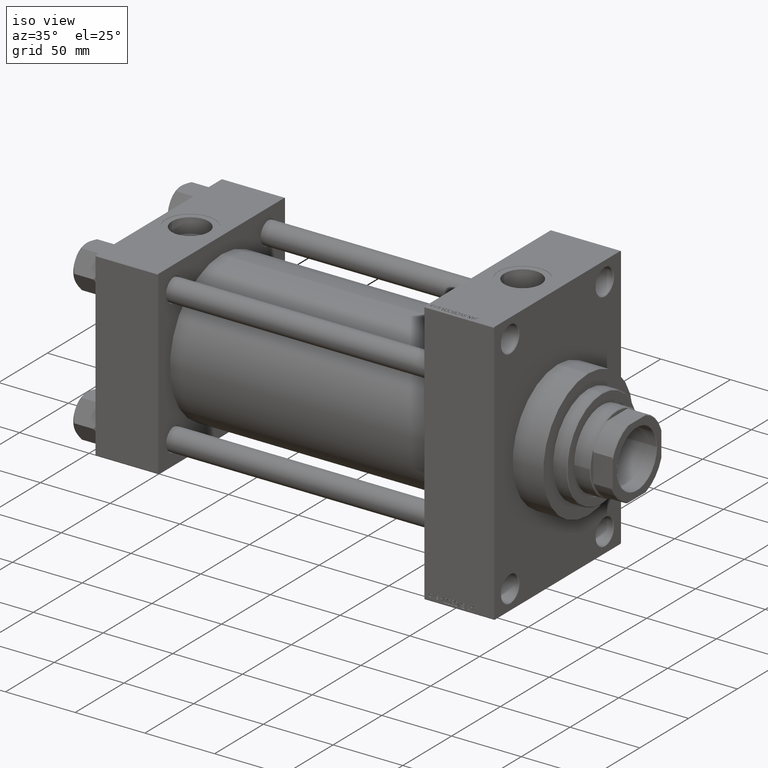
[diagram: clean part render]
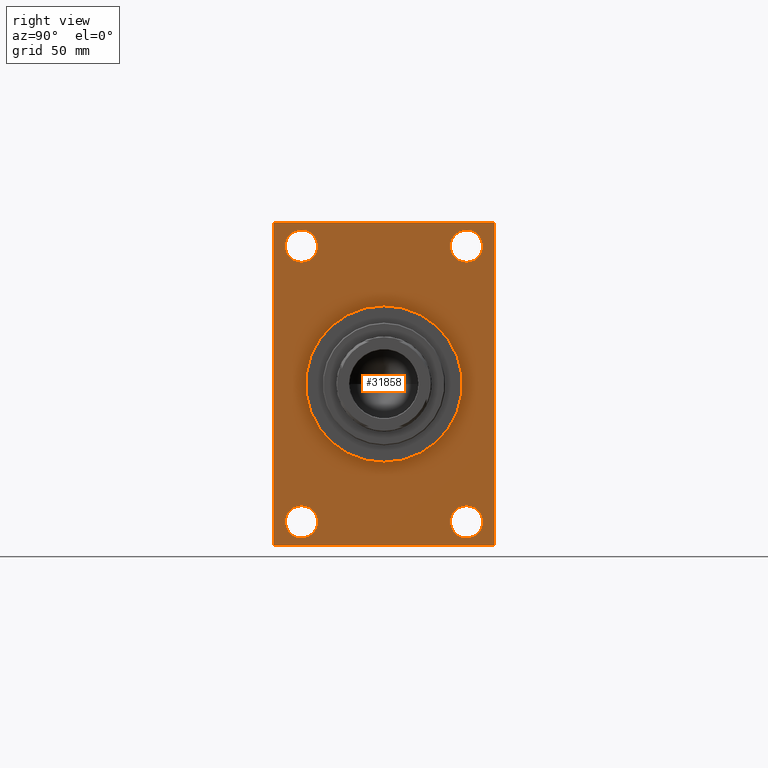
[diagram: tour spotlight — one face highlighted and labeled with its STEP entity id]
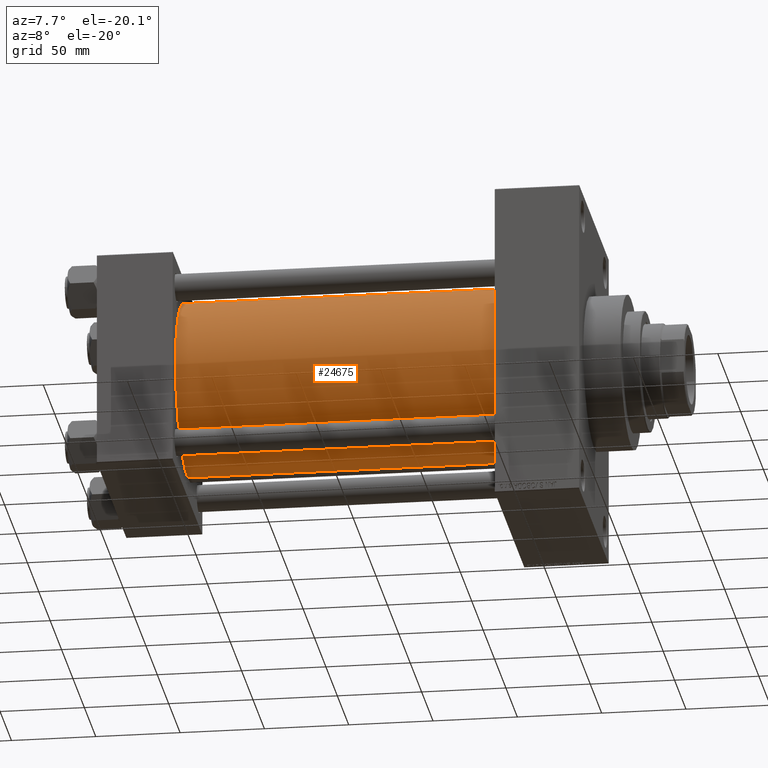
[diagram: tour spotlight — one face highlighted and labeled with its STEP entity id]
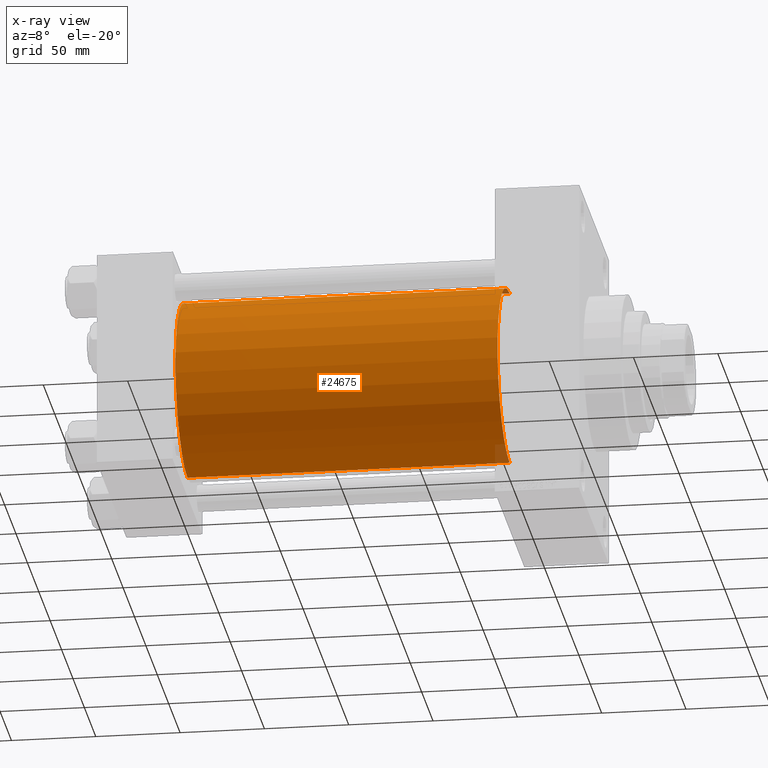
[diagram: x-ray of the same camera — body ghosted, this tour face saturated]
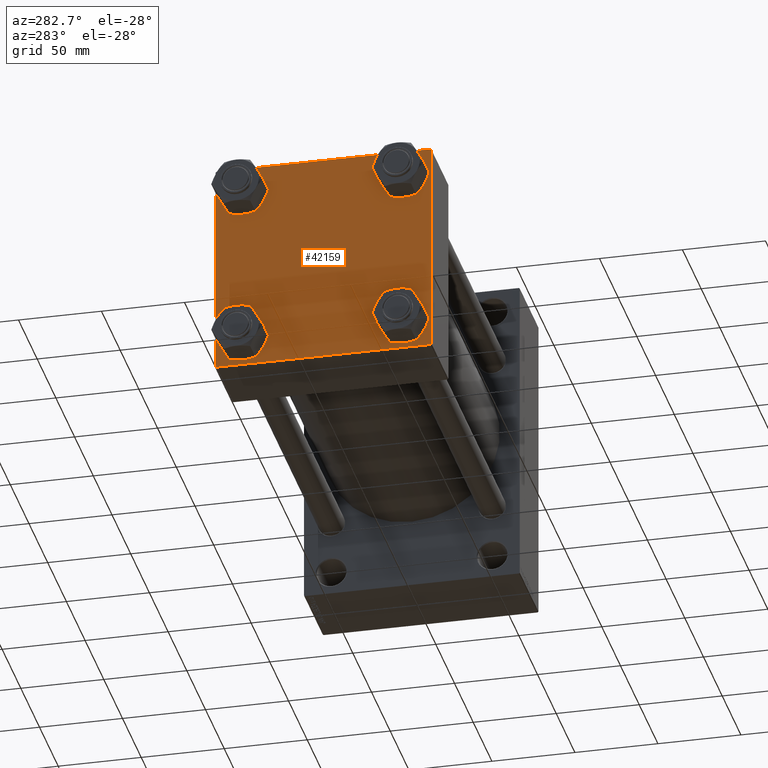
[diagram: tour spotlight — one face highlighted and labeled with its STEP entity id]
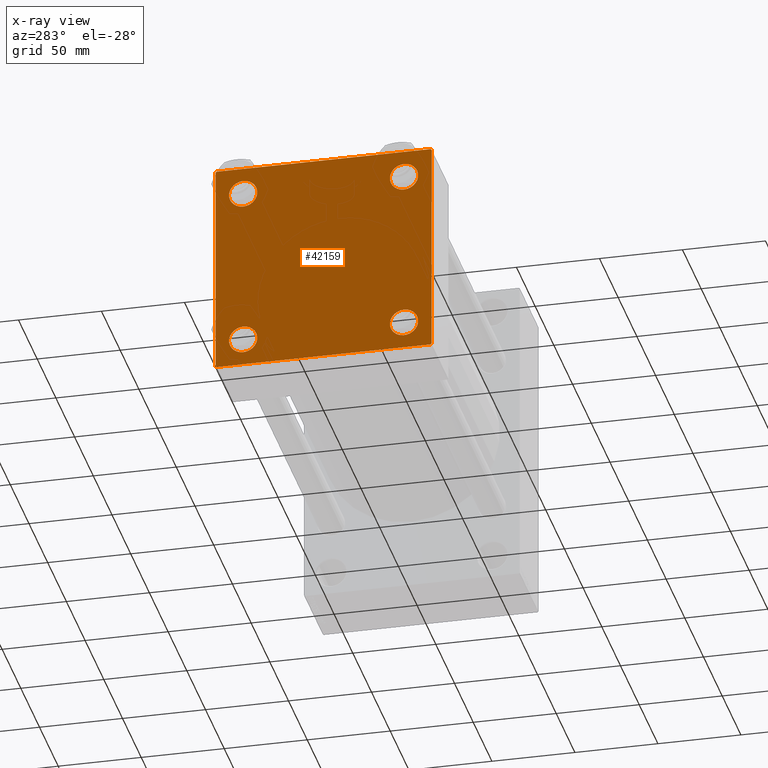
[diagram: x-ray of the same camera — body ghosted, this tour face saturated]
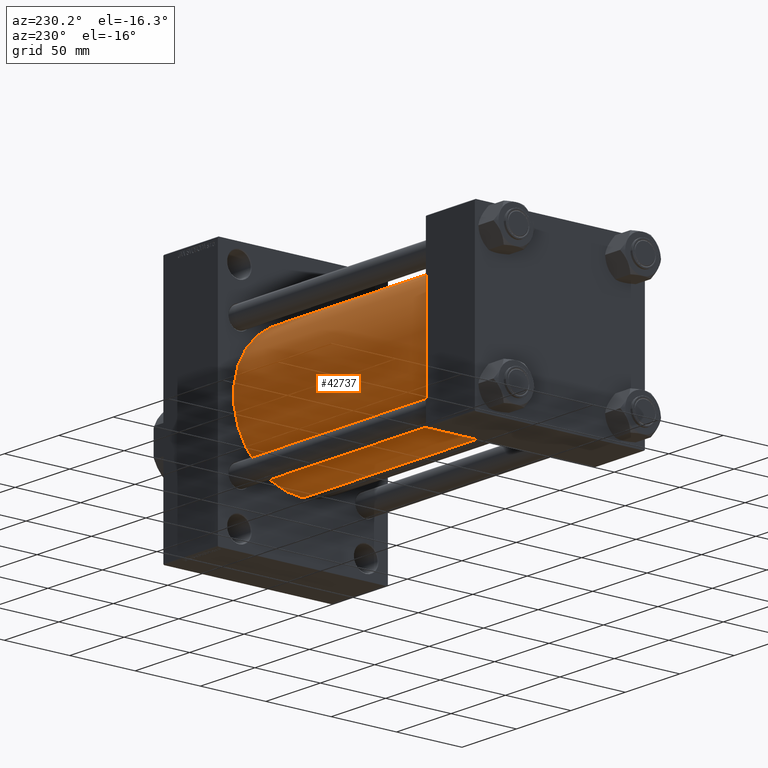
[diagram: tour spotlight — one face highlighted and labeled with its STEP entity id]
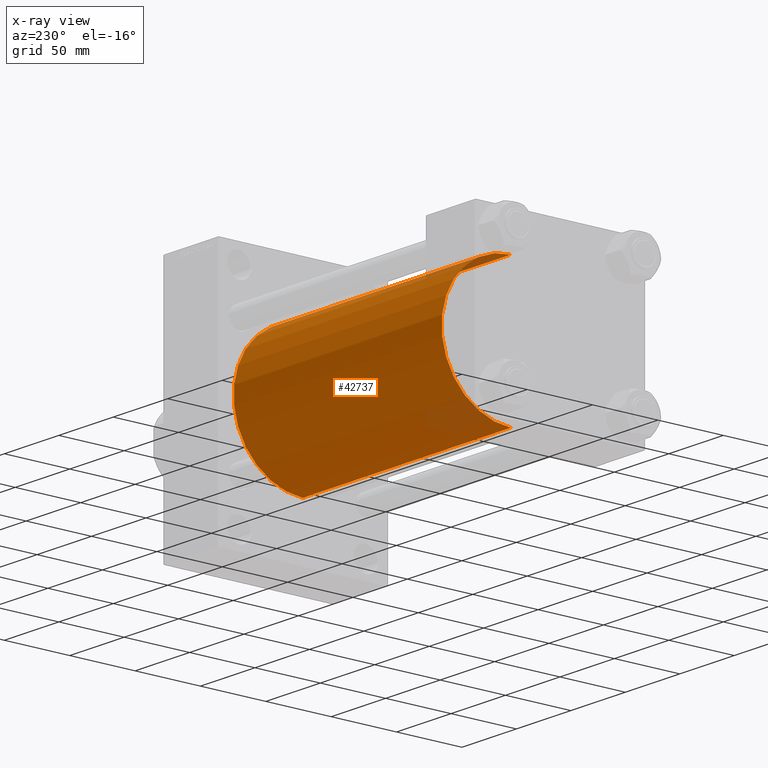
[diagram: x-ray of the same camera — body ghosted, this tour face saturated]
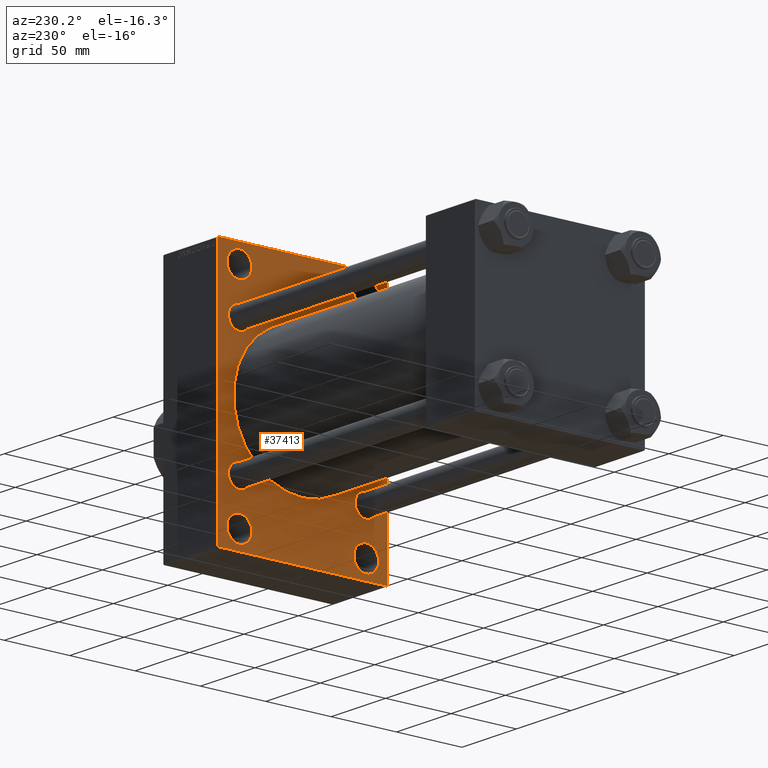
[diagram: tour spotlight — one face highlighted and labeled with its STEP entity id]
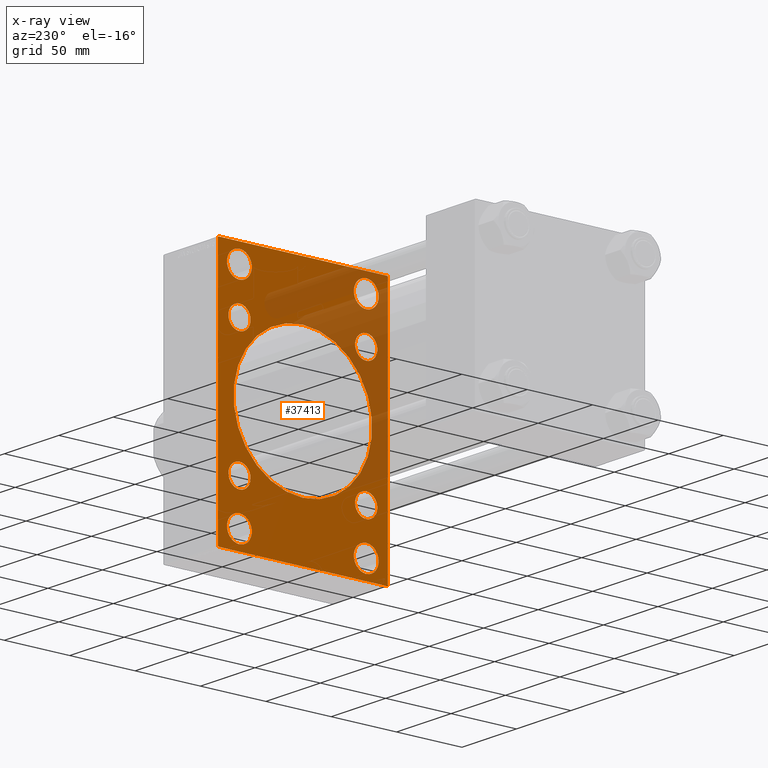
[diagram: x-ray of the same camera — body ghosted, this tour face saturated]
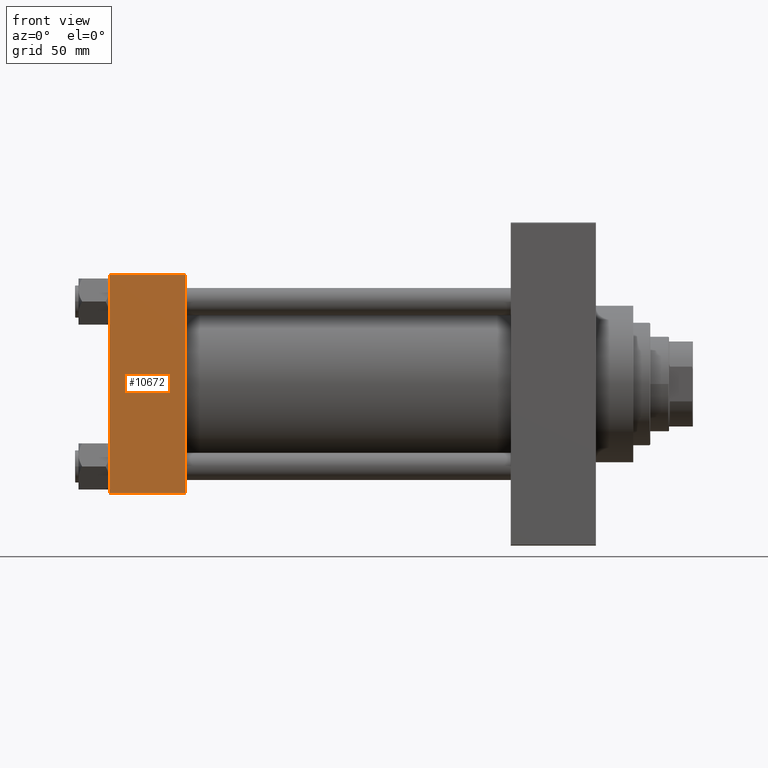
[diagram: tour spotlight — one face highlighted and labeled with its STEP entity id]
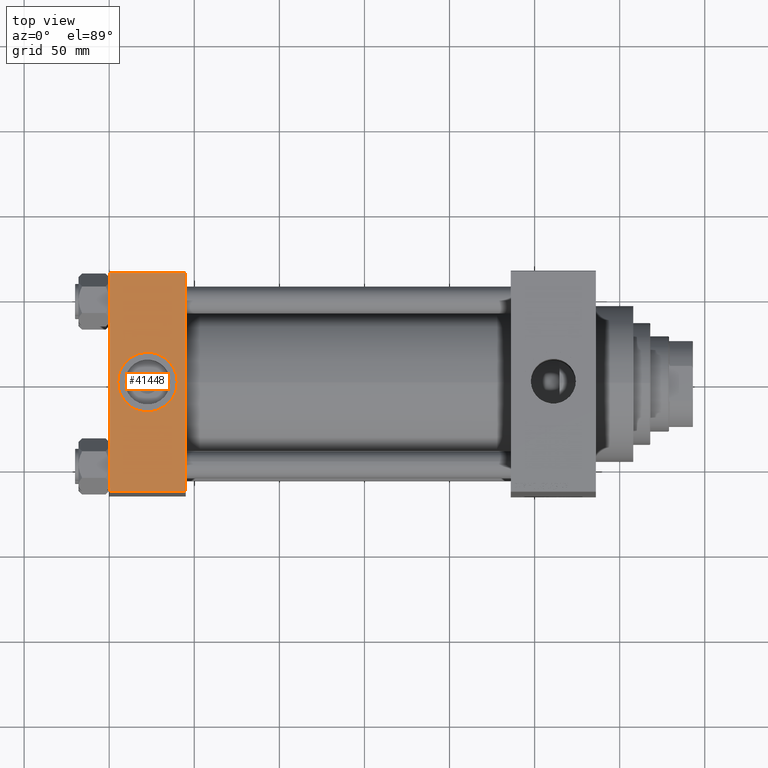
[diagram: tour spotlight — one face highlighted and labeled with its STEP entity id]
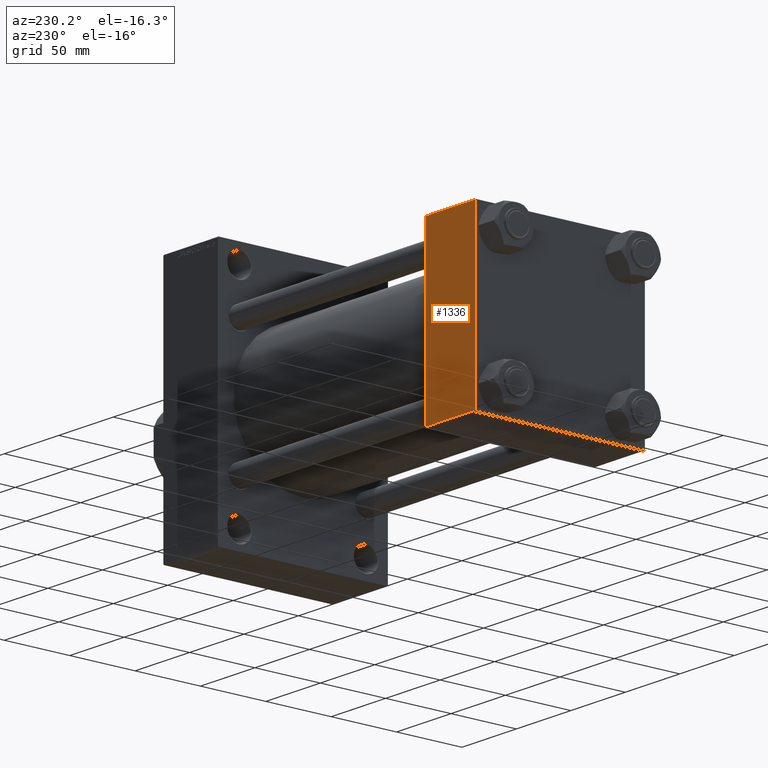
[diagram: tour spotlight — one face highlighted and labeled with its STEP entity id]
A machine part: a face-by-face anatomy tour. The part has 1151 B-rep faces; the first image is the clean iso view, then the 8 largest visible faces are spotlighted one at a time (largest first), each with its STEP entity span.

Face 1 — right view, entity #31858. In plain terms, the highlighted planar face has unit normal (-1, 0, 0).
Definition (entity closure, byte-faithful):
#111 = ORIENTED_EDGE ( 'NONE', *, *, #8556, .T. ) ;
#171 = ORIENTED_EDGE ( 'NONE', *, *, #23273, .T. ) ;
#340 = CIRCLE ( 'NONE', #27328, 9.499999999999953815 ) ;
#399 = EDGE_CURVE ( 'NONE', #34562, #24213, #32475, .T. ) ;
#835 = EDGE_CURVE ( 'NONE', #23549, #37330, #41685, .T. ) ;
#908 = LINE ( 'NONE', #11135, #18936 ) ;
#941 = CARTESIAN_POINT ( 'NONE',  ( 286.0000000000000000, 64.99999999999998579, -94.49999999999997158 ) ) ;
#1009 = VERTEX_POINT ( 'NONE', #36113 ) ;
#1953 = AXIS2_PLACEMENT_3D ( 'NONE', #28317, #13355, #24691 ) ;
#2095 = EDGE_LOOP ( 'NONE', ( #38069, #14162 ) ) ;
#2318 = ORIENTED_EDGE ( 'NONE', *, *, #19279, .T. ) ;
#2713 = CARTESIAN_POINT ( 'NONE',  ( 286.0000000000000000, -48.49999999999999289, -71.50000000000005684 ) ) ;
#2904 = CIRCLE ( 'NONE', #25255, 46.00000000000000000 ) ;
#3521 = ORIENTED_EDGE ( 'NONE', *, *, #35739, .T. ) ;
#3736 = DIRECTION ( 'NONE',  ( -0.000000000000000000, -0.7071067811865378028, -0.7071067811865573427 ) ) ;
#4101 = VERTEX_POINT ( 'NONE', #23730 ) ;
#4335 = ORIENTED_EDGE ( 'NONE', *, *, #12175, .T. ) ;
#4439 = CARTESIAN_POINT ( 'NONE',  ( 286.0000000000000000, -65.00000000000001421, 94.49999999999997158 ) ) ;
#4594 = AXIS2_PLACEMENT_3D ( 'NONE', #16519, #12433, #45972 ) ;
#4824 = AXIS2_PLACEMENT_3D ( 'NONE', #9199, #5106, #16663 ) ;
#5106 = DIRECTION ( 'NONE',  ( -1.000000000000000000, 0.000000000000000000, -0.000000000000000000 ) ) ;
#5255 = ORIENTED_EDGE ( 'NONE', *, *, #27199, .T. ) ;
#5844 = CARTESIAN_POINT ( 'NONE',  ( 286.0000000000000000, 48.50000000000000711, -71.50000000000005684 ) ) ;
#6104 = DIRECTION ( 'NONE',  ( 0.000000000000000000, -1.000000000000000000, 0.000000000000000000 ) ) ;
#6181 = CARTESIAN_POINT ( 'NONE',  ( 286.0000000000000000, -48.50000000000000000, 90.49999999999995737 ) ) ;
#6251 = EDGE_LOOP ( 'NONE', ( #3521, #44863 ) ) ;
#6872 = VECTOR ( 'NONE', #9542, 1000.000000000000000 ) ;
#7425 = CARTESIAN_POINT ( 'NONE',  ( 286.0000000000000000, -64.50000000000001421, -95.00000000000002842 ) ) ;
#7517 = CARTESIAN_POINT ( 'NONE',  ( 286.0000000000000000, -64.50000000000002842, 94.99999999999997158 ) ) ;
#8159 = DIRECTION ( 'NONE',  ( -1.000000000000000000, 0.000000000000000000, -0.000000000000000000 ) ) ;
#8472 = CARTESIAN_POINT ( 'NONE',  ( 286.0000000000000000, -65.00000000000001421, 94.49999999999997158 ) ) ;
#8556 = EDGE_CURVE ( 'NONE', #30710, #29524, #21863, .T. ) ;
#9173 = VERTEX_POINT ( 'NONE', #35363 ) ;
#9199 = CARTESIAN_POINT ( 'NONE',  ( 286.0000000000000000, -48.50000000000000000, 81.00000000000000000 ) ) ;
#9299 = AXIS2_PLACEMENT_3D ( 'NONE', #37112, #13956, #28679 ) ;
#9542 = DIRECTION ( 'NONE',  ( 0.000000000000000000, 7.304098846218135653E-17, -1.000000000000000000 ) ) ;
#9734 = CARTESIAN_POINT ( 'NONE',  ( 286.0000000000000000, 64.99999999999997158, 94.99999999999997158 ) ) ;
#10121 = DIRECTION ( 'NONE',  ( -1.000000000000000000, 0.000000000000000000, -0.000000000000000000 ) ) ;
#10596 = VECTOR ( 'NONE', #33526, 999.9999999999998863 ) ;
#11110 = EDGE_CURVE ( 'NONE', #12758, #1009, #37209, .T. ) ;
#11135 = CARTESIAN_POINT ( 'NONE',  ( 286.0000000000000000, 64.49999999999997158, 94.99999999999997158 ) ) ;
#11476 = AXIS2_PLACEMENT_3D ( 'NONE', #44768, #26423, #41157 ) ;
#11644 = DIRECTION ( 'NONE',  ( 0.000000000000000000, 0.7071067811865474617, -0.7071067811865474617 ) ) ;
#11707 = FACE_BOUND ( 'NONE', #39191, .T. ) ;
#11948 = PLANE ( 'NONE',  #11476 ) ;
#12175 = EDGE_CURVE ( 'NONE', #37330, #23549, #43418, .T. ) ;
#12386 = LINE ( 'NONE', #9734, #21198 ) ;
#12433 = DIRECTION ( 'NONE',  ( 1.000000000000000000, 0.000000000000000000, 0.000000000000000000 ) ) ;
#12755 = EDGE_CURVE ( 'NONE', #16322, #9173, #19662, .T. ) ;
#12758 = VERTEX_POINT ( 'NONE', #2713 ) ;
#13026 = CIRCLE ( 'NONE', #17634, 9.499999999999953815 ) ;
#13355 = DIRECTION ( 'NONE',  ( -1.000000000000000000, 0.000000000000000000, -0.000000000000000000 ) ) ;
#13454 = DIRECTION ( 'NONE',  ( 0.000000000000000000, -1.000000000000000000, -1.067522139062650425E-16 ) ) ;
#13956 = DIRECTION ( 'NONE',  ( -1.000000000000000000, 0.000000000000000000, -0.000000000000000000 ) ) ;
#14128 = DIRECTION ( 'NONE',  ( 1.000000000000000000, 0.000000000000000000, 0.000000000000000000 ) ) ;
#14162 = ORIENTED_EDGE ( 'NONE', *, *, #37087, .F. ) ;
#14375 = DIRECTION ( 'NONE',  ( 0.000000000000000000, 0.000000000000000000, -1.000000000000000000 ) ) ;
#14506 = DIRECTION ( 'NONE',  ( 0.000000000000000000, -0.7071067811865474617, 0.7071067811865474617 ) ) ;
#14532 = EDGE_CURVE ( 'NONE', #45005, #34562, #27079, .T. ) ;
#14706 = CARTESIAN_POINT ( 'NONE',  ( 286.0000000000000000, 64.99999999999998579, -94.49999999999997158 ) ) ;
#14847 = FACE_BOUND ( 'NONE', #28607, .T. ) ;
#15314 = FACE_BOUND ( 'NONE', #6251, .T. ) ;
#16322 = VERTEX_POINT ( 'NONE', #42565 ) ;
#16519 = CARTESIAN_POINT ( 'NONE',  ( 286.0000000000000000, 0.000000000000000000, 0.000000000000000000 ) ) ;
#16615 = DIRECTION ( 'NONE',  ( -1.000000000000000000, 0.000000000000000000, -0.000000000000000000 ) ) ;
#16663 = DIRECTION ( 'NONE',  ( 0.000000000000000000, 0.000000000000000000, 1.000000000000000000 ) ) ;
#16720 = DIRECTION ( 'NONE',  ( -1.000000000000000000, 0.000000000000000000, -0.000000000000000000 ) ) ;
#16913 = EDGE_LOOP ( 'NONE', ( #30822, #37925, #26002, #30425, #17879, #39919, #2318, #5255 ) ) ;
#17634 = AXIS2_PLACEMENT_3D ( 'NONE', #37592, #8159, #22390 ) ;
#17879 = ORIENTED_EDGE ( 'NONE', *, *, #32670, .F. ) ;
#18649 = CARTESIAN_POINT ( 'NONE',  ( 286.0000000000000000, 48.50000000000000711, -90.49999999999997158 ) ) ;
#18936 = VECTOR ( 'NONE', #14506, 1000.000000000000114 ) ;
#19279 = EDGE_CURVE ( 'NONE', #4101, #36230, #12386, .T. ) ;
#19662 = CIRCLE ( 'NONE', #41257, 9.499999999999953815 ) ;
#19836 = CARTESIAN_POINT ( 'NONE',  ( 286.0000000000000000, -65.00000000000001421, 94.99999999999997158 ) ) ;
#20107 = CARTESIAN_POINT ( 'NONE',  ( 286.0000000000000000, -65.00000000000001421, -94.50000000000002842 ) ) ;
#20220 = LINE ( 'NONE', #24083, #24901 ) ;
#20587 = CARTESIAN_POINT ( 'NONE',  ( 286.0000000000000000, 48.50000000000000711, 81.00000000000000000 ) ) ;
#20881 = CARTESIAN_POINT ( 'NONE',  ( 286.0000000000000000, 64.99999999999997158, 94.49999999999997158 ) ) ;
#21064 = AXIS2_PLACEMENT_3D ( 'NONE', #33744, #36242, #21750 ) ;
#21198 = VECTOR ( 'NONE', #6104, 1000.000000000000000 ) ;
#21430 = VERTEX_POINT ( 'NONE', #14706 ) ;
#21663 = EDGE_CURVE ( 'NONE', #9173, #16322, #340, .T. ) ;
#21750 = DIRECTION ( 'NONE',  ( 0.000000000000000000, 0.000000000000000000, 1.000000000000000000 ) ) ;
#21863 = CIRCLE ( 'NONE', #4824, 9.499999999999953815 ) ;
#22097 = VERTEX_POINT ( 'NONE', #20881 ) ;
#22390 = DIRECTION ( 'NONE',  ( 0.000000000000000000, 0.000000000000000000, 1.000000000000000000 ) ) ;
#22612 = VECTOR ( 'NONE', #34556, 1000.000000000000000 ) ;
#23273 = EDGE_CURVE ( 'NONE', #29524, #30710, #32017, .T. ) ;
#23549 = VERTEX_POINT ( 'NONE', #5844 ) ;
#23730 = CARTESIAN_POINT ( 'NONE',  ( 286.0000000000000000, 64.49999999999997158, 94.99999999999997158 ) ) ;
#24083 = CARTESIAN_POINT ( 'NONE',  ( 286.0000000000000000, 64.99999999999998579, -95.00000000000001421 ) ) ;
#24124 = DIRECTION ( 'NONE',  ( 0.000000000000000000, 0.000000000000000000, 1.000000000000000000 ) ) ;
#24213 = VERTEX_POINT ( 'NONE', #7425 ) ;
#24691 = DIRECTION ( 'NONE',  ( 0.000000000000000000, 0.000000000000000000, 1.000000000000000000 ) ) ;
#24901 = VECTOR ( 'NONE', #13454, 1000.000000000000000 ) ;
#24973 = CARTESIAN_POINT ( 'NONE',  ( 286.0000000000000000, 64.49999999999992895, -95.00000000000001421 ) ) ;
#25255 = AXIS2_PLACEMENT_3D ( 'NONE', #28854, #14128, #14375 ) ;
#25932 = LINE ( 'NONE', #4439, #43693 ) ;
#26002 = ORIENTED_EDGE ( 'NONE', *, *, #42461, .F. ) ;
#26234 = CARTESIAN_POINT ( 'NONE',  ( 286.0000000000000000, -48.50000000000000000, 71.50000000000004263 ) ) ;
#26288 = LINE ( 'NONE', #941, #10596 ) ;
#26423 = DIRECTION ( 'NONE',  ( -1.000000000000000000, 0.000000000000000000, -0.000000000000000000 ) ) ;
#26448 = ORIENTED_EDGE ( 'NONE', *, *, #12755, .T. ) ;
#27079 = LINE ( 'NONE', #19836, #22612 ) ;
#27199 = EDGE_CURVE ( 'NONE', #36230, #45005, #25932, .T. ) ;
#27328 = AXIS2_PLACEMENT_3D ( 'NONE', #31810, #16615, #39054 ) ;
#27386 = EDGE_CURVE ( 'NONE', #44029, #21430, #26288, .T. ) ;
#28317 = CARTESIAN_POINT ( 'NONE',  ( 286.0000000000000000, -48.50000000000000000, 81.00000000000000000 ) ) ;
#28607 = EDGE_LOOP ( 'NONE', ( #26448, #38595 ) ) ;
#28642 = EDGE_CURVE ( 'NONE', #46047, #34331, #2904, .T. ) ;
#28679 = DIRECTION ( 'NONE',  ( 0.000000000000000000, 0.000000000000000000, 1.000000000000000000 ) ) ;
#28854 = CARTESIAN_POINT ( 'NONE',  ( 286.0000000000000000, 0.000000000000000000, 0.000000000000000000 ) ) ;
#29061 = CARTESIAN_POINT ( 'NONE',  ( 286.0000000000000000, 64.99999999999997158, 94.99999999999997158 ) ) ;
#29524 = VERTEX_POINT ( 'NONE', #6181 ) ;
#29576 = FACE_OUTER_BOUND ( 'NONE', #16913, .T. ) ;
#30045 = FACE_BOUND ( 'NONE', #45048, .T. ) ;
#30425 = ORIENTED_EDGE ( 'NONE', *, *, #27386, .T. ) ;
#30710 = VERTEX_POINT ( 'NONE', #26234 ) ;
#30822 = ORIENTED_EDGE ( 'NONE', *, *, #14532, .T. ) ;
#31453 = DIRECTION ( 'NONE',  ( 0.000000000000000000, 0.000000000000000000, 1.000000000000000000 ) ) ;
#31810 = CARTESIAN_POINT ( 'NONE',  ( 286.0000000000000000, 48.50000000000000711, 81.00000000000000000 ) ) ;
#31858 = ADVANCED_FACE ( 'NONE', ( #11707, #15314, #30045, #14847, #41633, #29576 ), #11948, .F. ) ;
#32017 = CIRCLE ( 'NONE', #1953, 9.499999999999953815 ) ;
#32273 = ORIENTED_EDGE ( 'NONE', *, *, #835, .T. ) ;
#32475 = LINE ( 'NONE', #33356, #43976 ) ;
#32670 = EDGE_CURVE ( 'NONE', #22097, #21430, #32678, .T. ) ;
#32678 = LINE ( 'NONE', #29061, #6872 ) ;
#33356 = CARTESIAN_POINT ( 'NONE',  ( 286.0000000000000000, -64.50000000000001421, -95.00000000000002842 ) ) ;
#33526 = DIRECTION ( 'NONE',  ( -0.000000000000000000, 0.7071067811865574537, 0.7071067811865376918 ) ) ;
#33744 = CARTESIAN_POINT ( 'NONE',  ( 286.0000000000000000, 48.50000000000000711, -81.00000000000001421 ) ) ;
#34331 = VERTEX_POINT ( 'NONE', #41006 ) ;
#34556 = DIRECTION ( 'NONE',  ( 0.000000000000000000, 0.000000000000000000, -1.000000000000000000 ) ) ;
#34562 = VERTEX_POINT ( 'NONE', #20107 ) ;
#35363 = CARTESIAN_POINT ( 'NONE',  ( 286.0000000000000000, 48.50000000000000711, 90.49999999999995737 ) ) ;
#35739 = EDGE_CURVE ( 'NONE', #1009, #12758, #13026, .T. ) ;
#36113 = CARTESIAN_POINT ( 'NONE',  ( 286.0000000000000000, -48.49999999999999289, -90.49999999999997158 ) ) ;
#36230 = VERTEX_POINT ( 'NONE', #7517 ) ;
#36242 = DIRECTION ( 'NONE',  ( -1.000000000000000000, 0.000000000000000000, -0.000000000000000000 ) ) ;
#36422 = CARTESIAN_POINT ( 'NONE',  ( 286.0000000000000000, 0.000000000000000000, 46.00000000000000000 ) ) ;
#37087 = EDGE_CURVE ( 'NONE', #34331, #46047, #40029, .T. ) ;
#37112 = CARTESIAN_POINT ( 'NONE',  ( 286.0000000000000000, 48.50000000000000711, -81.00000000000001421 ) ) ;
#37209 = CIRCLE ( 'NONE', #45703, 9.499999999999953815 ) ;
#37330 = VERTEX_POINT ( 'NONE', #18649 ) ;
#37592 = CARTESIAN_POINT ( 'NONE',  ( 286.0000000000000000, -48.49999999999999289, -81.00000000000001421 ) ) ;
#37925 = ORIENTED_EDGE ( 'NONE', *, *, #399, .T. ) ;
#38069 = ORIENTED_EDGE ( 'NONE', *, *, #28642, .F. ) ;
#38595 = ORIENTED_EDGE ( 'NONE', *, *, #21663, .T. ) ;
#39054 = DIRECTION ( 'NONE',  ( 0.000000000000000000, 0.000000000000000000, 1.000000000000000000 ) ) ;
#39191 = EDGE_LOOP ( 'NONE', ( #111, #171 ) ) ;
#39919 = ORIENTED_EDGE ( 'NONE', *, *, #47329, .T. ) ;
#40029 = CIRCLE ( 'NONE', #4594, 46.00000000000000000 ) ;
#41006 = CARTESIAN_POINT ( 'NONE',  ( 286.0000000000000000, 5.633375276077824704E-15, -46.00000000000000000 ) ) ;
#41157 = DIRECTION ( 'NONE',  ( -0.000000000000000000, 0.000000000000000000, 1.000000000000000000 ) ) ;
#41257 = AXIS2_PLACEMENT_3D ( 'NONE', #20587, #16720, #31453 ) ;
#41633 = FACE_BOUND ( 'NONE', #2095, .T. ) ;
#41685 = CIRCLE ( 'NONE', #9299, 9.499999999999953815 ) ;
#42461 = EDGE_CURVE ( 'NONE', #44029, #24213, #20220, .T. ) ;
#42565 = CARTESIAN_POINT ( 'NONE',  ( 286.0000000000000000, 48.50000000000000711, 71.50000000000004263 ) ) ;
#43174 = CARTESIAN_POINT ( 'NONE',  ( 286.0000000000000000, -48.49999999999999289, -81.00000000000001421 ) ) ;
#43418 = CIRCLE ( 'NONE', #21064, 9.499999999999953815 ) ;
#43693 = VECTOR ( 'NONE', #3736, 1000.000000000000000 ) ;
#43976 = VECTOR ( 'NONE', #11644, 1000.000000000000114 ) ;
#44029 = VERTEX_POINT ( 'NONE', #24973 ) ;
#44768 = CARTESIAN_POINT ( 'NONE',  ( 286.0000000000000000, 0.000000000000000000, 0.000000000000000000 ) ) ;
#44863 = ORIENTED_EDGE ( 'NONE', *, *, #11110, .T. ) ;
#45005 = VERTEX_POINT ( 'NONE', #8472 ) ;
#45048 = EDGE_LOOP ( 'NONE', ( #4335, #32273 ) ) ;
#45703 = AXIS2_PLACEMENT_3D ( 'NONE', #43174, #10121, #24124 ) ;
#45972 = DIRECTION ( 'NONE',  ( 0.000000000000000000, 0.000000000000000000, -1.000000000000000000 ) ) ;
#46047 = VERTEX_POINT ( 'NONE', #36422 ) ;
#47329 = EDGE_CURVE ( 'NONE', #22097, #4101, #908, .T. ) ;

Face 2 — auxiliary view, entity #24675. An x-ray twin of the same camera follows (body ghosted, this face saturated) — the face is partly hidden behind the body. In plain terms, the highlighted cylindrical surface (partial cylindrical patch) has radius 53 mm, axis along (-1, -0, -0).
Definition (entity closure, byte-faithful):
#1918 = CIRCLE ( 'NONE', #17300, 53.00000000000000711 ) ;
#3052 = CARTESIAN_POINT ( 'NONE',  ( 236.0000000000000000, -2.602085213965210642E-15, 53.00000000000000711 ) ) ;
#3188 = CARTESIAN_POINT ( 'NONE',  ( 236.0000000000000000, -2.602085213965210642E-15, 0.000000000000000000 ) ) ;
#11636 = EDGE_CURVE ( 'NONE', #42249, #24000, #27239, .T. ) ;
#13844 = CARTESIAN_POINT ( 'NONE',  ( 236.0000000000000000, -2.602085213965210642E-15, 0.000000000000000000 ) ) ;
#14079 = DIRECTION ( 'NONE',  ( 0.000000000000000000, 0.000000000000000000, -1.000000000000000000 ) ) ;
#14978 = LINE ( 'NONE', #44429, #23248 ) ;
#15094 = DIRECTION ( 'NONE',  ( -1.000000000000000000, -0.000000000000000000, -0.000000000000000000 ) ) ;
#17300 = AXIS2_PLACEMENT_3D ( 'NONE', #13844, #40382, #14079 ) ;
#18057 = EDGE_CURVE ( 'NONE', #38288, #42249, #25246, .T. ) ;
#18399 = EDGE_CURVE ( 'NONE', #38288, #44572, #1918, .T. ) ;
#19469 = ORIENTED_EDGE ( 'NONE', *, *, #41265, .F. ) ;
#19755 = ORIENTED_EDGE ( 'NONE', *, *, #11636, .T. ) ;
#22273 = CARTESIAN_POINT ( 'NONE',  ( 236.0000000000000000, 3.888542821515762466E-15, -53.00000000000000711 ) ) ;
#22780 = AXIS2_PLACEMENT_3D ( 'NONE', #3188, #36493, #29017 ) ;
#23248 = VECTOR ( 'NONE', #26082, 1000.000000000000000 ) ;
#24000 = VERTEX_POINT ( 'NONE', #35098 ) ;
#24675 = ADVANCED_FACE ( 'NONE', ( #28531 ), #43256, .T. ) ;
#25246 = LINE ( 'NONE', #3052, #25782 ) ;
#25782 = VECTOR ( 'NONE', #15094, 1000.000000000000000 ) ;
#26082 = DIRECTION ( 'NONE',  ( -1.000000000000000000, -0.000000000000000000, -0.000000000000000000 ) ) ;
#26562 = CARTESIAN_POINT ( 'NONE',  ( 236.0000000000000000, -2.602085213965210642E-15, 53.00000000000000711 ) ) ;
#27239 = CIRCLE ( 'NONE', #38052, 53.00000000000000711 ) ;
#28531 = FACE_OUTER_BOUND ( 'NONE', #42243, .T. ) ;
#29017 = DIRECTION ( 'NONE',  ( 0.000000000000000000, 0.000000000000000000, 1.000000000000000000 ) ) ;
#30292 = CARTESIAN_POINT ( 'NONE',  ( 44.99999999999998579, -2.602085213965210642E-15, 0.000000000000000000 ) ) ;
#30541 = DIRECTION ( 'NONE',  ( 0.000000000000000000, 0.000000000000000000, 1.000000000000000000 ) ) ;
#31393 = CARTESIAN_POINT ( 'NONE',  ( 44.99999999999998579, -2.602085213965210642E-15, 53.00000000000000711 ) ) ;
#33674 = DIRECTION ( 'NONE',  ( 1.000000000000000000, -0.000000000000000000, 0.000000000000000000 ) ) ;
#35098 = CARTESIAN_POINT ( 'NONE',  ( 44.99999999999998579, 3.888542821515762466E-15, -53.00000000000000711 ) ) ;
#36493 = DIRECTION ( 'NONE',  ( -1.000000000000000000, -0.000000000000000000, -0.000000000000000000 ) ) ;
#38052 = AXIS2_PLACEMENT_3D ( 'NONE', #30292, #33674, #30541 ) ;
#38288 = VERTEX_POINT ( 'NONE', #26562 ) ;
#40382 = DIRECTION ( 'NONE',  ( 1.000000000000000000, 0.000000000000000000, 0.000000000000000000 ) ) ;
#40628 = ORIENTED_EDGE ( 'NONE', *, *, #18399, .F. ) ;
#41265 = EDGE_CURVE ( 'NONE', #44572, #24000, #14978, .T. ) ;
#42243 = EDGE_LOOP ( 'NONE', ( #19469, #40628, #47015, #19755 ) ) ;
#42249 = VERTEX_POINT ( 'NONE', #31393 ) ;
#43256 = CYLINDRICAL_SURFACE ( 'NONE', #22780, 53.00000000000000711 ) ;
#44429 = CARTESIAN_POINT ( 'NONE',  ( 236.0000000000000000, 3.888542821515762466E-15, -53.00000000000000711 ) ) ;
#44572 = VERTEX_POINT ( 'NONE', #22273 ) ;
#47015 = ORIENTED_EDGE ( 'NONE', *, *, #18057, .T. ) ;

Face 3 — auxiliary view, entity #42159. An x-ray twin of the same camera follows (body ghosted, this face saturated) — the face is partly hidden behind the body. In plain terms, the highlighted planar face has unit normal (-1, 0, 0).
Definition (entity closure, byte-faithful):
#355 = DIRECTION ( 'NONE',  ( 1.000000000000000000, -0.000000000000000000, 0.000000000000000000 ) ) ;
#439 = CARTESIAN_POINT ( 'NONE',  ( 0.000000000000000000, 64.74999999999997158, -64.74999999999997158 ) ) ;
#1057 = DIRECTION ( 'NONE',  ( 0.000000000000000000, 0.000000000000000000, 1.000000000000000000 ) ) ;
#1231 = LINE ( 'NONE', #8965, #40462 ) ;
#1311 = VERTEX_POINT ( 'NONE', #6858 ) ;
#1401 = DIRECTION ( 'NONE',  ( 0.000000000000000000, 0.000000000000000000, 1.000000000000000000 ) ) ;
#1538 = CARTESIAN_POINT ( 'NONE',  ( 0.000000000000000000, 48.45000000000000995, 48.45000000000001705 ) ) ;
#1695 = EDGE_LOOP ( 'NONE', ( #5008, #31812 ) ) ;
#1830 = AXIS2_PLACEMENT_3D ( 'NONE', #7885, #29845, #41666 ) ;
#1895 = LINE ( 'NONE', #38570, #2619 ) ;
#2122 = CARTESIAN_POINT ( 'NONE',  ( 0.000000000000000000, -65.00000000000000000, -64.49999999999991473 ) ) ;
#2220 = CIRCLE ( 'NONE', #45393, 8.500000000000007105 ) ;
#2495 = EDGE_CURVE ( 'NONE', #21453, #5959, #11789, .T. ) ;
#2619 = VECTOR ( 'NONE', #10092, 1000.000000000000000 ) ;
#2656 = VERTEX_POINT ( 'NONE', #2122 ) ;
#2673 = DIRECTION ( 'NONE',  ( 0.000000000000000000, 0.000000000000000000, -1.000000000000000000 ) ) ;
#3201 = DIRECTION ( 'NONE',  ( 1.000000000000000000, -0.000000000000000000, 0.000000000000000000 ) ) ;
#3460 = VERTEX_POINT ( 'NONE', #8435 ) ;
#4944 = EDGE_CURVE ( 'NONE', #3460, #18443, #44083, .T. ) ;
#5008 = ORIENTED_EDGE ( 'NONE', *, *, #31801, .T. ) ;
#5197 = CARTESIAN_POINT ( 'NONE',  ( 0.000000000000000000, 48.45000000000000995, -56.95000000000002416 ) ) ;
#5959 = VERTEX_POINT ( 'NONE', #27084 ) ;
#6278 = FACE_BOUND ( 'NONE', #6917, .T. ) ;
#6529 = CARTESIAN_POINT ( 'NONE',  ( 0.000000000000000000, 65.00000000000000000, -64.49999999999995737 ) ) ;
#6807 = CARTESIAN_POINT ( 'NONE',  ( 0.000000000000000000, 48.45000000000000995, -48.45000000000001705 ) ) ;
#6858 = CARTESIAN_POINT ( 'NONE',  ( 0.000000000000000000, -64.49999999999997158, 65.00000000000000000 ) ) ;
#6917 = EDGE_LOOP ( 'NONE', ( #28210, #30205 ) ) ;
#7013 = CARTESIAN_POINT ( 'NONE',  ( 0.000000000000000000, -65.00000000000000000, 65.00000000000000000 ) ) ;
#7464 = CARTESIAN_POINT ( 'NONE',  ( 0.000000000000000000, -48.44999999999999574, -48.45000000000003126 ) ) ;
#7692 = CARTESIAN_POINT ( 'NONE',  ( 0.000000000000000000, -48.44999999999999574, 56.95000000000003837 ) ) ;
#7885 = CARTESIAN_POINT ( 'NONE',  ( 0.000000000000000000, 48.45000000000000995, -48.45000000000001705 ) ) ;
#7942 = EDGE_CURVE ( 'NONE', #19840, #15084, #9509, .T. ) ;
#8356 = CARTESIAN_POINT ( 'NONE',  ( 0.000000000000000000, -48.44999999999999574, 39.95000000000001705 ) ) ;
#8435 = CARTESIAN_POINT ( 'NONE',  ( 0.000000000000000000, 48.45000000000000995, 39.95000000000000284 ) ) ;
#8965 = CARTESIAN_POINT ( 'NONE',  ( 0.000000000000000000, -64.75000000000176215, -64.74999999999816680 ) ) ;
#9349 = LINE ( 'NONE', #21146, #45730 ) ;
#9509 = CIRCLE ( 'NONE', #21823, 8.500000000000007105 ) ;
#9906 = FACE_BOUND ( 'NONE', #1695, .T. ) ;
#10054 = ORIENTED_EDGE ( 'NONE', *, *, #15274, .T. ) ;
#10092 = DIRECTION ( 'NONE',  ( 0.000000000000000000, -1.000000000000000000, -1.067522139062650425E-16 ) ) ;
#10379 = EDGE_CURVE ( 'NONE', #32174, #46332, #32573, .T. ) ;
#10655 = DIRECTION ( 'NONE',  ( 1.000000000000000000, -0.000000000000000000, 0.000000000000000000 ) ) ;
#11581 = VERTEX_POINT ( 'NONE', #5197 ) ;
#11779 = ORIENTED_EDGE ( 'NONE', *, *, #41136, .T. ) ;
#11789 = LINE ( 'NONE', #439, #20103 ) ;
#12656 = CIRCLE ( 'NONE', #38842, 8.500000000000007105 ) ;
#12766 = CARTESIAN_POINT ( 'NONE',  ( 0.000000000000000000, -48.44999999999999574, -56.95000000000003837 ) ) ;
#15084 = VERTEX_POINT ( 'NONE', #47743 ) ;
#15163 = DIRECTION ( 'NONE',  ( -0.000000000000000000, -0.7071067811865474617, -0.7071067811865474617 ) ) ;
#15274 = EDGE_CURVE ( 'NONE', #18411, #1311, #9349, .T. ) ;
#15942 = ORIENTED_EDGE ( 'NONE', *, *, #2495, .T. ) ;
#17270 = EDGE_LOOP ( 'NONE', ( #17276, #36577 ) ) ;
#17276 = ORIENTED_EDGE ( 'NONE', *, *, #10379, .T. ) ;
#17453 = EDGE_CURVE ( 'NONE', #46332, #32174, #12656, .T. ) ;
#18355 = ORIENTED_EDGE ( 'NONE', *, *, #25819, .F. ) ;
#18411 = VERTEX_POINT ( 'NONE', #32908 ) ;
#18443 = VERTEX_POINT ( 'NONE', #47626 ) ;
#18467 = VECTOR ( 'NONE', #29255, 1000.000000000000000 ) ;
#18471 = CARTESIAN_POINT ( 'NONE',  ( 0.000000000000000000, 48.45000000000000995, 48.45000000000001705 ) ) ;
#18572 = VERTEX_POINT ( 'NONE', #26322 ) ;
#18760 = EDGE_CURVE ( 'NONE', #22354, #2656, #1231, .T. ) ;
#19033 = ORIENTED_EDGE ( 'NONE', *, *, #43343, .F. ) ;
#19547 = CARTESIAN_POINT ( 'NONE',  ( 0.000000000000000000, 65.00000000000000000, 65.00000000000001421 ) ) ;
#19632 = AXIS2_PLACEMENT_3D ( 'NONE', #7464, #29171, #47271 ) ;
#19840 = VERTEX_POINT ( 'NONE', #12766 ) ;
#20075 = VERTEX_POINT ( 'NONE', #32996 ) ;
#20103 = VECTOR ( 'NONE', #15163, 1000.000000000000114 ) ;
#20758 = PLANE ( 'NONE',  #21047 ) ;
#20984 = FACE_BOUND ( 'NONE', #31883, .T. ) ;
#21047 = AXIS2_PLACEMENT_3D ( 'NONE', #31855, #23900, #32094 ) ;
#21146 = CARTESIAN_POINT ( 'NONE',  ( -0.000000000000000000, -64.74999999999819522, 64.75000000000179057 ) ) ;
#21453 = VERTEX_POINT ( 'NONE', #6529 ) ;
#21823 = AXIS2_PLACEMENT_3D ( 'NONE', #34466, #34226, #1401 ) ;
#22354 = VERTEX_POINT ( 'NONE', #28539 ) ;
#22630 = CIRCLE ( 'NONE', #1830, 8.500000000000007105 ) ;
#23900 = DIRECTION ( 'NONE',  ( -1.000000000000000000, 0.000000000000000000, -0.000000000000000000 ) ) ;
#24008 = CIRCLE ( 'NONE', #40206, 8.500000000000007105 ) ;
#24880 = DIRECTION ( 'NONE',  ( 0.000000000000000000, 0.000000000000000000, 1.000000000000000000 ) ) ;
#24919 = DIRECTION ( 'NONE',  ( 0.000000000000000000, 0.000000000000000000, 1.000000000000000000 ) ) ;
#25001 = VERTEX_POINT ( 'NONE', #28010 ) ;
#25819 = EDGE_CURVE ( 'NONE', #18411, #2656, #28718, .T. ) ;
#25850 = DIRECTION ( 'NONE',  ( 0.000000000000000000, 0.000000000000000000, 1.000000000000000000 ) ) ;
#25869 = CARTESIAN_POINT ( 'NONE',  ( 0.000000000000000000, 65.00000000000000000, -64.99999999999998579 ) ) ;
#26322 = CARTESIAN_POINT ( 'NONE',  ( 0.000000000000000000, 48.45000000000000995, -39.95000000000000284 ) ) ;
#26471 = ORIENTED_EDGE ( 'NONE', *, *, #43524, .T. ) ;
#26763 = EDGE_LOOP ( 'NONE', ( #41146, #15942, #39274, #30307, #18355, #10054, #19033, #26471 ) ) ;
#27084 = CARTESIAN_POINT ( 'NONE',  ( 0.000000000000000000, 64.49999999999997158, -64.99999999999998579 ) ) ;
#27131 = AXIS2_PLACEMENT_3D ( 'NONE', #1538, #42092, #1057 ) ;
#27995 = FACE_OUTER_BOUND ( 'NONE', #26763, .T. ) ;
#28010 = CARTESIAN_POINT ( 'NONE',  ( 0.000000000000000000, 64.49999999999997158, 65.00000000000001421 ) ) ;
#28050 = VECTOR ( 'NONE', #29141, 1000.000000000000114 ) ;
#28210 = ORIENTED_EDGE ( 'NONE', *, *, #45209, .T. ) ;
#28507 = CARTESIAN_POINT ( 'NONE',  ( 0.000000000000000000, -48.44999999999999574, 48.45000000000003126 ) ) ;
#28539 = CARTESIAN_POINT ( 'NONE',  ( 0.000000000000000000, -64.49999999999994316, -65.00000000000000000 ) ) ;
#28651 = CARTESIAN_POINT ( 'NONE',  ( 0.000000000000000000, 64.74999999999998579, 64.74999999999998579 ) ) ;
#28718 = LINE ( 'NONE', #7013, #39008 ) ;
#29141 = DIRECTION ( 'NONE',  ( 0.000000000000000000, 0.7071067811865474617, -0.7071067811865474617 ) ) ;
#29171 = DIRECTION ( 'NONE',  ( 1.000000000000000000, -0.000000000000000000, 0.000000000000000000 ) ) ;
#29255 = DIRECTION ( 'NONE',  ( 0.000000000000000000, -1.000000000000000000, -1.067522139062650425E-16 ) ) ;
#29845 = DIRECTION ( 'NONE',  ( 1.000000000000000000, -0.000000000000000000, 0.000000000000000000 ) ) ;
#30205 = ORIENTED_EDGE ( 'NONE', *, *, #7942, .T. ) ;
#30307 = ORIENTED_EDGE ( 'NONE', *, *, #18760, .T. ) ;
#30682 = DIRECTION ( 'NONE',  ( 0.000000000000000000, -0.7071067811865279218, 0.7071067811865671127 ) ) ;
#31801 = EDGE_CURVE ( 'NONE', #18443, #3460, #2220, .T. ) ;
#31812 = ORIENTED_EDGE ( 'NONE', *, *, #4944, .T. ) ;
#31819 = AXIS2_PLACEMENT_3D ( 'NONE', #43974, #3201, #24919 ) ;
#31855 = CARTESIAN_POINT ( 'NONE',  ( 0.000000000000000000, 0.000000000000000000, 0.000000000000000000 ) ) ;
#31883 = EDGE_LOOP ( 'NONE', ( #11779, #37384 ) ) ;
#32094 = DIRECTION ( 'NONE',  ( -0.000000000000000000, 0.000000000000000000, 1.000000000000000000 ) ) ;
#32174 = VERTEX_POINT ( 'NONE', #7692 ) ;
#32573 = CIRCLE ( 'NONE', #31819, 8.500000000000007105 ) ;
#32614 = DIRECTION ( 'NONE',  ( 1.000000000000000000, -0.000000000000000000, 0.000000000000000000 ) ) ;
#32908 = CARTESIAN_POINT ( 'NONE',  ( 0.000000000000000000, -65.00000000000000000, 64.50000000000000000 ) ) ;
#32996 = CARTESIAN_POINT ( 'NONE',  ( 0.000000000000000000, 65.00000000000000000, 64.49999999999998579 ) ) ;
#33193 = DIRECTION ( 'NONE',  ( 0.000000000000000000, 0.000000000000000000, 1.000000000000000000 ) ) ;
#33459 = LINE ( 'NONE', #28651, #28050 ) ;
#33549 = LINE ( 'NONE', #19547, #46139 ) ;
#33784 = DIRECTION ( 'NONE',  ( 0.000000000000000000, 0.000000000000000000, -1.000000000000000000 ) ) ;
#34226 = DIRECTION ( 'NONE',  ( 1.000000000000000000, -0.000000000000000000, 0.000000000000000000 ) ) ;
#34466 = CARTESIAN_POINT ( 'NONE',  ( 0.000000000000000000, -48.44999999999999574, -48.45000000000003126 ) ) ;
#34794 = EDGE_CURVE ( 'NONE', #5959, #22354, #37441, .T. ) ;
#35045 = CIRCLE ( 'NONE', #19632, 8.500000000000007105 ) ;
#35245 = FACE_BOUND ( 'NONE', #17270, .T. ) ;
#35459 = EDGE_CURVE ( 'NONE', #20075, #21453, #33549, .T. ) ;
#36577 = ORIENTED_EDGE ( 'NONE', *, *, #17453, .T. ) ;
#37384 = ORIENTED_EDGE ( 'NONE', *, *, #43634, .T. ) ;
#37441 = LINE ( 'NONE', #25869, #18467 ) ;
#38570 = CARTESIAN_POINT ( 'NONE',  ( 0.000000000000000000, 65.00000000000000000, 65.00000000000001421 ) ) ;
#38842 = AXIS2_PLACEMENT_3D ( 'NONE', #28507, #10655, #24880 ) ;
#39008 = VECTOR ( 'NONE', #2673, 1000.000000000000000 ) ;
#39274 = ORIENTED_EDGE ( 'NONE', *, *, #34794, .T. ) ;
#40206 = AXIS2_PLACEMENT_3D ( 'NONE', #6807, #32614, #25850 ) ;
#40462 = VECTOR ( 'NONE', #30682, 1000.000000000000000 ) ;
#41136 = EDGE_CURVE ( 'NONE', #18572, #11581, #24008, .T. ) ;
#41146 = ORIENTED_EDGE ( 'NONE', *, *, #35459, .T. ) ;
#41666 = DIRECTION ( 'NONE',  ( 0.000000000000000000, 0.000000000000000000, 1.000000000000000000 ) ) ;
#42092 = DIRECTION ( 'NONE',  ( 1.000000000000000000, -0.000000000000000000, 0.000000000000000000 ) ) ;
#42159 = ADVANCED_FACE ( 'NONE', ( #35245, #6278, #20984, #9906, #27995 ), #20758, .T. ) ;
#43113 = DIRECTION ( 'NONE',  ( -0.000000000000000000, 0.7071067811865672237, 0.7071067811865279218 ) ) ;
#43343 = EDGE_CURVE ( 'NONE', #25001, #1311, #1895, .T. ) ;
#43524 = EDGE_CURVE ( 'NONE', #25001, #20075, #33459, .T. ) ;
#43634 = EDGE_CURVE ( 'NONE', #11581, #18572, #22630, .T. ) ;
#43974 = CARTESIAN_POINT ( 'NONE',  ( 0.000000000000000000, -48.44999999999999574, 48.45000000000003126 ) ) ;
#44083 = CIRCLE ( 'NONE', #27131, 8.500000000000007105 ) ;
#45209 = EDGE_CURVE ( 'NONE', #15084, #19840, #35045, .T. ) ;
#45393 = AXIS2_PLACEMENT_3D ( 'NONE', #18471, #355, #33193 ) ;
#45730 = VECTOR ( 'NONE', #43113, 1000.000000000000000 ) ;
#46139 = VECTOR ( 'NONE', #33784, 1000.000000000000000 ) ;
#46332 = VERTEX_POINT ( 'NONE', #8356 ) ;
#47271 = DIRECTION ( 'NONE',  ( 0.000000000000000000, 0.000000000000000000, 1.000000000000000000 ) ) ;
#47626 = CARTESIAN_POINT ( 'NONE',  ( 0.000000000000000000, 48.45000000000000995, 56.95000000000002416 ) ) ;
#47743 = CARTESIAN_POINT ( 'NONE',  ( 0.000000000000000000, -48.44999999999999574, -39.95000000000001705 ) ) ;

Face 4 — auxiliary view, entity #42737. An x-ray twin of the same camera follows (body ghosted, this face saturated) — the face is partly hidden behind the body. In plain terms, the highlighted cylindrical surface (partial cylindrical patch) has radius 53 mm, axis along (-1, -0, -0).
Definition (entity closure, byte-faithful):
#1423 = CARTESIAN_POINT ( 'NONE',  ( 44.99999999999998579, -2.602085213965210642E-15, 0.000000000000000000 ) ) ;
#3052 = CARTESIAN_POINT ( 'NONE',  ( 236.0000000000000000, -2.602085213965210642E-15, 53.00000000000000711 ) ) ;
#9074 = CYLINDRICAL_SURFACE ( 'NONE', #35696, 53.00000000000000711 ) ;
#9730 = EDGE_CURVE ( 'NONE', #24000, #42249, #41811, .T. ) ;
#11397 = EDGE_LOOP ( 'NONE', ( #32015, #35862, #21376, #41430 ) ) ;
#14978 = LINE ( 'NONE', #44429, #23248 ) ;
#15094 = DIRECTION ( 'NONE',  ( -1.000000000000000000, -0.000000000000000000, -0.000000000000000000 ) ) ;
#16141 = DIRECTION ( 'NONE',  ( 0.000000000000000000, 0.000000000000000000, 1.000000000000000000 ) ) ;
#16547 = CARTESIAN_POINT ( 'NONE',  ( 236.0000000000000000, -2.602085213965210642E-15, 0.000000000000000000 ) ) ;
#18057 = EDGE_CURVE ( 'NONE', #38288, #42249, #25246, .T. ) ;
#20871 = CIRCLE ( 'NONE', #30147, 53.00000000000000711 ) ;
#21376 = ORIENTED_EDGE ( 'NONE', *, *, #9730, .T. ) ;
#22273 = CARTESIAN_POINT ( 'NONE',  ( 236.0000000000000000, 3.888542821515762466E-15, -53.00000000000000711 ) ) ;
#23248 = VECTOR ( 'NONE', #26082, 1000.000000000000000 ) ;
#24000 = VERTEX_POINT ( 'NONE', #35098 ) ;
#24021 = DIRECTION ( 'NONE',  ( 0.000000000000000000, 0.000000000000000000, 1.000000000000000000 ) ) ;
#24258 = FACE_OUTER_BOUND ( 'NONE', #11397, .T. ) ;
#24512 = DIRECTION ( 'NONE',  ( 1.000000000000000000, 0.000000000000000000, 0.000000000000000000 ) ) ;
#25246 = LINE ( 'NONE', #3052, #25782 ) ;
#25782 = VECTOR ( 'NONE', #15094, 1000.000000000000000 ) ;
#26082 = DIRECTION ( 'NONE',  ( -1.000000000000000000, -0.000000000000000000, -0.000000000000000000 ) ) ;
#26562 = CARTESIAN_POINT ( 'NONE',  ( 236.0000000000000000, -2.602085213965210642E-15, 53.00000000000000711 ) ) ;
#30147 = AXIS2_PLACEMENT_3D ( 'NONE', #16547, #24512, #46234 ) ;
#30643 = DIRECTION ( 'NONE',  ( 1.000000000000000000, -0.000000000000000000, 0.000000000000000000 ) ) ;
#31393 = CARTESIAN_POINT ( 'NONE',  ( 44.99999999999998579, -2.602085213965210642E-15, 53.00000000000000711 ) ) ;
#31505 = CARTESIAN_POINT ( 'NONE',  ( 236.0000000000000000, -2.602085213965210642E-15, 0.000000000000000000 ) ) ;
#32015 = ORIENTED_EDGE ( 'NONE', *, *, #40906, .F. ) ;
#34639 = DIRECTION ( 'NONE',  ( -1.000000000000000000, -0.000000000000000000, -0.000000000000000000 ) ) ;
#34871 = AXIS2_PLACEMENT_3D ( 'NONE', #1423, #30643, #16141 ) ;
#35098 = CARTESIAN_POINT ( 'NONE',  ( 44.99999999999998579, 3.888542821515762466E-15, -53.00000000000000711 ) ) ;
#35696 = AXIS2_PLACEMENT_3D ( 'NONE', #31505, #34639, #24021 ) ;
#35862 = ORIENTED_EDGE ( 'NONE', *, *, #41265, .T. ) ;
#38288 = VERTEX_POINT ( 'NONE', #26562 ) ;
#40906 = EDGE_CURVE ( 'NONE', #44572, #38288, #20871, .T. ) ;
#41265 = EDGE_CURVE ( 'NONE', #44572, #24000, #14978, .T. ) ;
#41430 = ORIENTED_EDGE ( 'NONE', *, *, #18057, .F. ) ;
#41811 = CIRCLE ( 'NONE', #34871, 53.00000000000000711 ) ;
#42249 = VERTEX_POINT ( 'NONE', #31393 ) ;
#42737 = ADVANCED_FACE ( 'NONE', ( #24258 ), #9074, .T. ) ;
#44429 = CARTESIAN_POINT ( 'NONE',  ( 236.0000000000000000, 3.888542821515762466E-15, -53.00000000000000711 ) ) ;
#44572 = VERTEX_POINT ( 'NONE', #22273 ) ;
#46234 = DIRECTION ( 'NONE',  ( 0.000000000000000000, 0.000000000000000000, -1.000000000000000000 ) ) ;

Face 5 — auxiliary view, entity #37413. An x-ray twin of the same camera follows (body ghosted, this face saturated) — the face is partly hidden behind the body. In plain terms, the highlighted planar face has unit normal (-1, 0, 0).
Definition (entity closure, byte-faithful):
#46 = LINE ( 'NONE', #14773, #24289 ) ;
#146 = VECTOR ( 'NONE', #34495, 1000.000000000000000 ) ;
#598 = DIRECTION ( 'NONE',  ( 1.000000000000000000, -0.000000000000000000, 0.000000000000000000 ) ) ;
#909 = DIRECTION ( 'NONE',  ( 0.000000000000000000, 7.304098846218135653E-17, -1.000000000000000000 ) ) ;
#1082 = DIRECTION ( 'NONE',  ( 1.000000000000000000, -0.000000000000000000, 0.000000000000000000 ) ) ;
#1164 = DIRECTION ( 'NONE',  ( 0.000000000000000000, 0.000000000000000000, 1.000000000000000000 ) ) ;
#1194 = CIRCLE ( 'NONE', #25052, 9.500000000000063949 ) ;
#1395 = ORIENTED_EDGE ( 'NONE', *, *, #18399, .T. ) ;
#1677 = ORIENTED_EDGE ( 'NONE', *, *, #36168, .T. ) ;
#1918 = CIRCLE ( 'NONE', #17300, 53.00000000000000711 ) ;
#1942 = FACE_BOUND ( 'NONE', #32715, .T. ) ;
#2117 = VECTOR ( 'NONE', #13881, 1000.000000000000114 ) ;
#2170 = ORIENTED_EDGE ( 'NONE', *, *, #26231, .T. ) ;
#2177 = DIRECTION ( 'NONE',  ( -1.000000000000000000, 0.000000000000000000, -0.000000000000000000 ) ) ;
#2470 = CARTESIAN_POINT ( 'NONE',  ( 236.0000000000000000, -48.49999999999999289, -90.50000000000008527 ) ) ;
#2748 = CARTESIAN_POINT ( 'NONE',  ( 236.0000000000000000, 64.99999999999997158, 94.49999999999997158 ) ) ;
#3171 = EDGE_CURVE ( 'NONE', #5143, #6787, #43303, .T. ) ;
#3221 = ORIENTED_EDGE ( 'NONE', *, *, #8391, .T. ) ;
#3282 = ORIENTED_EDGE ( 'NONE', *, *, #19360, .T. ) ;
#3845 = DIRECTION ( 'NONE',  ( 1.000000000000000000, -0.000000000000000000, 0.000000000000000000 ) ) ;
#3896 = CIRCLE ( 'NONE', #45510, 8.500000000000007105 ) ;
#4075 = CARTESIAN_POINT ( 'NONE',  ( 236.0000000000000000, -48.44999999999999574, 48.45000000000003126 ) ) ;
#4090 = CIRCLE ( 'NONE', #17956, 9.500000000000063949 ) ;
#4198 = VERTEX_POINT ( 'NONE', #24211 ) ;
#4496 = VERTEX_POINT ( 'NONE', #42739 ) ;
#4526 = ORIENTED_EDGE ( 'NONE', *, *, #36615, .T. ) ;
#4648 = CIRCLE ( 'NONE', #14641, 8.500000000000007105 ) ;
#4675 = EDGE_CURVE ( 'NONE', #18575, #6787, #26777, .T. ) ;
#4880 = AXIS2_PLACEMENT_3D ( 'NONE', #44536, #598, #40915 ) ;
#4897 = DIRECTION ( 'NONE',  ( -0.000000000000000000, -0.7071067811865574537, -0.7071067811865376918 ) ) ;
#4954 = EDGE_LOOP ( 'NONE', ( #40246, #32325 ) ) ;
#5143 = VERTEX_POINT ( 'NONE', #42458 ) ;
#5467 = CARTESIAN_POINT ( 'NONE',  ( 236.0000000000000000, 48.50000000000000711, 81.00000000000000000 ) ) ;
#5784 = AXIS2_PLACEMENT_3D ( 'NONE', #38750, #34420, #19694 ) ;
#6362 = CIRCLE ( 'NONE', #8687, 9.500000000000063949 ) ;
#6546 = ORIENTED_EDGE ( 'NONE', *, *, #38489, .T. ) ;
#6579 = DIRECTION ( 'NONE',  ( 1.000000000000000000, -0.000000000000000000, 0.000000000000000000 ) ) ;
#6692 = EDGE_CURVE ( 'NONE', #37882, #8473, #31026, .T. ) ;
#6787 = VERTEX_POINT ( 'NONE', #25135 ) ;
#7168 = EDGE_CURVE ( 'NONE', #5143, #12267, #19254, .T. ) ;
#7525 = VERTEX_POINT ( 'NONE', #35063 ) ;
#7688 = DIRECTION ( 'NONE',  ( 0.000000000000000000, 0.000000000000000000, 1.000000000000000000 ) ) ;
#7939 = ORIENTED_EDGE ( 'NONE', *, *, #13664, .T. ) ;
#8391 = EDGE_CURVE ( 'NONE', #46957, #4198, #42679, .T. ) ;
#8473 = VERTEX_POINT ( 'NONE', #2470 ) ;
#8687 = AXIS2_PLACEMENT_3D ( 'NONE', #37495, #8783, #41368 ) ;
#8762 = CARTESIAN_POINT ( 'NONE',  ( 236.0000000000000000, -48.49999999999999289, -81.00000000000001421 ) ) ;
#8783 = DIRECTION ( 'NONE',  ( 1.000000000000000000, -0.000000000000000000, 0.000000000000000000 ) ) ;
#8969 = DIRECTION ( 'NONE',  ( 0.000000000000000000, 0.000000000000000000, 1.000000000000000000 ) ) ;
#9455 = EDGE_CURVE ( 'NONE', #26898, #7525, #6362, .T. ) ;
#9479 = DIRECTION ( 'NONE',  ( 0.000000000000000000, 0.000000000000000000, 1.000000000000000000 ) ) ;
#9604 = ORIENTED_EDGE ( 'NONE', *, *, #21865, .T. ) ;
#9632 = DIRECTION ( 'NONE',  ( 0.000000000000000000, 0.000000000000000000, 1.000000000000000000 ) ) ;
#9642 = AXIS2_PLACEMENT_3D ( 'NONE', #25379, #6579, #40103 ) ;
#9792 = VERTEX_POINT ( 'NONE', #24094 ) ;
#10371 = DIRECTION ( 'NONE',  ( 0.000000000000000000, 0.000000000000000000, 1.000000000000000000 ) ) ;
#10540 = EDGE_CURVE ( 'NONE', #37938, #4496, #44148, .T. ) ;
#10704 = EDGE_CURVE ( 'NONE', #8473, #37882, #4090, .T. ) ;
#10924 = ORIENTED_EDGE ( 'NONE', *, *, #4675, .F. ) ;
#11007 = ORIENTED_EDGE ( 'NONE', *, *, #29779, .T. ) ;
#11202 = CIRCLE ( 'NONE', #37380, 9.500000000000063949 ) ;
#11283 = EDGE_CURVE ( 'NONE', #21074, #40402, #44177, .T. ) ;
#11310 = CARTESIAN_POINT ( 'NONE',  ( 236.0000000000000000, -48.44999999999999574, -48.45000000000003126 ) ) ;
#11889 = LINE ( 'NONE', #41579, #32005 ) ;
#12033 = DIRECTION ( 'NONE',  ( 0.000000000000000000, 0.000000000000000000, -1.000000000000000000 ) ) ;
#12180 = VERTEX_POINT ( 'NONE', #18133 ) ;
#12248 = CARTESIAN_POINT ( 'NONE',  ( 236.0000000000000000, -64.50000000000001421, -95.00000000000002842 ) ) ;
#12267 = VERTEX_POINT ( 'NONE', #45342 ) ;
#12399 = VERTEX_POINT ( 'NONE', #18959 ) ;
#13091 = DIRECTION ( 'NONE',  ( 1.000000000000000000, -0.000000000000000000, 0.000000000000000000 ) ) ;
#13148 = DIRECTION ( 'NONE',  ( -0.000000000000000000, 0.7071067811865378028, 0.7071067811865573427 ) ) ;
#13406 = EDGE_LOOP ( 'NONE', ( #3221, #9604 ) ) ;
#13443 = EDGE_LOOP ( 'NONE', ( #1395, #29217 ) ) ;
#13481 = CIRCLE ( 'NONE', #9642, 9.500000000000063949 ) ;
#13498 = EDGE_LOOP ( 'NONE', ( #43026, #36847 ) ) ;
#13664 = EDGE_CURVE ( 'NONE', #36945, #31547, #46, .T. ) ;
#13844 = CARTESIAN_POINT ( 'NONE',  ( 236.0000000000000000, -2.602085213965210642E-15, 0.000000000000000000 ) ) ;
#13881 = DIRECTION ( 'NONE',  ( 0.000000000000000000, -0.7071067811865474617, 0.7071067811865474617 ) ) ;
#14035 = DIRECTION ( 'NONE',  ( 0.000000000000000000, 0.000000000000000000, 1.000000000000000000 ) ) ;
#14079 = DIRECTION ( 'NONE',  ( 0.000000000000000000, 0.000000000000000000, -1.000000000000000000 ) ) ;
#14491 = EDGE_LOOP ( 'NONE', ( #31284, #40632 ) ) ;
#14641 = AXIS2_PLACEMENT_3D ( 'NONE', #4075, #19744, #1164 ) ;
#14773 = CARTESIAN_POINT ( 'NONE',  ( 236.0000000000000000, 64.99999999999998579, -95.00000000000001421 ) ) ;
#15386 = AXIS2_PLACEMENT_3D ( 'NONE', #42715, #2177, #27519 ) ;
#15638 = CARTESIAN_POINT ( 'NONE',  ( 236.0000000000000000, -65.00000000000001421, 94.99999999999997158 ) ) ;
#15655 = VERTEX_POINT ( 'NONE', #2748 ) ;
#16026 = DIRECTION ( 'NONE',  ( 0.000000000000000000, 0.000000000000000000, 1.000000000000000000 ) ) ;
#16028 = AXIS2_PLACEMENT_3D ( 'NONE', #38464, #45245, #16026 ) ;
#16333 = ORIENTED_EDGE ( 'NONE', *, *, #3171, .T. ) ;
#16504 = ORIENTED_EDGE ( 'NONE', *, *, #39629, .T. ) ;
#16547 = CARTESIAN_POINT ( 'NONE',  ( 236.0000000000000000, -2.602085213965210642E-15, 0.000000000000000000 ) ) ;
#16656 = FACE_OUTER_BOUND ( 'NONE', #39419, .T. ) ;
#16888 = FACE_BOUND ( 'NONE', #28516, .T. ) ;
#17300 = AXIS2_PLACEMENT_3D ( 'NONE', #13844, #40382, #14079 ) ;
#17802 = DIRECTION ( 'NONE',  ( 1.000000000000000000, -0.000000000000000000, 0.000000000000000000 ) ) ;
#17926 = VECTOR ( 'NONE', #12033, 1000.000000000000000 ) ;
#17956 = AXIS2_PLACEMENT_3D ( 'NONE', #34141, #1082, #23280 ) ;
#17998 = AXIS2_PLACEMENT_3D ( 'NONE', #47345, #21522, #14035 ) ;
#18133 = CARTESIAN_POINT ( 'NONE',  ( 236.0000000000000000, 48.50000000000000711, -90.50000000000008527 ) ) ;
#18394 = AXIS2_PLACEMENT_3D ( 'NONE', #38547, #42184, #31556 ) ;
#18399 = EDGE_CURVE ( 'NONE', #38288, #44572, #1918, .T. ) ;
#18546 = CARTESIAN_POINT ( 'NONE',  ( 236.0000000000000000, 48.50000000000000711, -81.00000000000001421 ) ) ;
#18575 = VERTEX_POINT ( 'NONE', #41050 ) ;
#18872 = CIRCLE ( 'NONE', #5784, 8.500000000000007105 ) ;
#18959 = CARTESIAN_POINT ( 'NONE',  ( 236.0000000000000000, 48.50000000000000711, -71.49999999999995737 ) ) ;
#19254 = LINE ( 'NONE', #15638, #17926 ) ;
#19360 = EDGE_CURVE ( 'NONE', #7525, #26898, #13481, .T. ) ;
#19394 = CARTESIAN_POINT ( 'NONE',  ( 236.0000000000000000, 64.99999999999998579, -94.49999999999997158 ) ) ;
#19694 = DIRECTION ( 'NONE',  ( 0.000000000000000000, 0.000000000000000000, 1.000000000000000000 ) ) ;
#19715 = ORIENTED_EDGE ( 'NONE', *, *, #9455, .T. ) ;
#19744 = DIRECTION ( 'NONE',  ( 1.000000000000000000, -0.000000000000000000, 0.000000000000000000 ) ) ;
#20033 = VERTEX_POINT ( 'NONE', #21654 ) ;
#20178 = EDGE_LOOP ( 'NONE', ( #3282, #19715 ) ) ;
#20658 = CARTESIAN_POINT ( 'NONE',  ( 236.0000000000000000, 48.50000000000000711, 71.49999999999994316 ) ) ;
#20753 = FACE_BOUND ( 'NONE', #14491, .T. ) ;
#20871 = CIRCLE ( 'NONE', #30147, 53.00000000000000711 ) ;
#21038 = VERTEX_POINT ( 'NONE', #20658 ) ;
#21074 = VERTEX_POINT ( 'NONE', #46715 ) ;
#21199 = ORIENTED_EDGE ( 'NONE', *, *, #7168, .F. ) ;
#21522 = DIRECTION ( 'NONE',  ( 1.000000000000000000, -0.000000000000000000, 0.000000000000000000 ) ) ;
#21654 = CARTESIAN_POINT ( 'NONE',  ( 236.0000000000000000, 48.50000000000000711, 90.50000000000007105 ) ) ;
#21785 = AXIS2_PLACEMENT_3D ( 'NONE', #8762, #13091, #9479 ) ;
#21844 = CARTESIAN_POINT ( 'NONE',  ( 236.0000000000000000, -79.75000000000001421, -79.75000000000001421 ) ) ;
#21865 = EDGE_CURVE ( 'NONE', #4198, #46957, #18872, .T. ) ;
#21968 = CARTESIAN_POINT ( 'NONE',  ( 236.0000000000000000, -48.44999999999999574, 56.95000000000003837 ) ) ;
#22201 = ORIENTED_EDGE ( 'NONE', *, *, #46029, .T. ) ;
#22273 = CARTESIAN_POINT ( 'NONE',  ( 236.0000000000000000, 3.888542821515762466E-15, -53.00000000000000711 ) ) ;
#22491 = DIRECTION ( 'NONE',  ( 0.000000000000000000, -1.000000000000000000, -1.067522139062650425E-16 ) ) ;
#22862 = EDGE_CURVE ( 'NONE', #21038, #20033, #1194, .T. ) ;
#23280 = DIRECTION ( 'NONE',  ( 0.000000000000000000, 0.000000000000000000, 1.000000000000000000 ) ) ;
#24094 = CARTESIAN_POINT ( 'NONE',  ( 236.0000000000000000, -48.44999999999999574, 39.95000000000001705 ) ) ;
#24211 = CARTESIAN_POINT ( 'NONE',  ( 236.0000000000000000, 48.45000000000000995, 39.95000000000000284 ) ) ;
#24289 = VECTOR ( 'NONE', #22491, 1000.000000000000000 ) ;
#24512 = DIRECTION ( 'NONE',  ( 1.000000000000000000, 0.000000000000000000, 0.000000000000000000 ) ) ;
#24751 = VECTOR ( 'NONE', #13148, 1000.000000000000000 ) ;
#25019 = CARTESIAN_POINT ( 'NONE',  ( 236.0000000000000000, 48.45000000000000995, -56.95000000000002416 ) ) ;
#25052 = AXIS2_PLACEMENT_3D ( 'NONE', #5467, #46002, #27654 ) ;
#25135 = CARTESIAN_POINT ( 'NONE',  ( 236.0000000000000000, -64.50000000000002842, 94.99999999999997158 ) ) ;
#25379 = CARTESIAN_POINT ( 'NONE',  ( 236.0000000000000000, -48.50000000000000000, 81.00000000000000000 ) ) ;
#25677 = AXIS2_PLACEMENT_3D ( 'NONE', #11310, #26020, #7688 ) ;
#25831 = ORIENTED_EDGE ( 'NONE', *, *, #10540, .T. ) ;
#26020 = DIRECTION ( 'NONE',  ( 1.000000000000000000, -0.000000000000000000, 0.000000000000000000 ) ) ;
#26231 = EDGE_CURVE ( 'NONE', #9792, #30451, #28269, .T. ) ;
#26562 = CARTESIAN_POINT ( 'NONE',  ( 236.0000000000000000, -2.602085213965210642E-15, 53.00000000000000711 ) ) ;
#26777 = LINE ( 'NONE', #45367, #146 ) ;
#26898 = VERTEX_POINT ( 'NONE', #45047 ) ;
#27519 = DIRECTION ( 'NONE',  ( -0.000000000000000000, 0.000000000000000000, 1.000000000000000000 ) ) ;
#27654 = DIRECTION ( 'NONE',  ( 0.000000000000000000, 0.000000000000000000, 1.000000000000000000 ) ) ;
#27704 = DIRECTION ( 'NONE',  ( 1.000000000000000000, -0.000000000000000000, 0.000000000000000000 ) ) ;
#27778 = EDGE_CURVE ( 'NONE', #31547, #12267, #46946, .T. ) ;
#27991 = FACE_BOUND ( 'NONE', #13443, .T. ) ;
#28232 = PLANE ( 'NONE',  #15386 ) ;
#28269 = CIRCLE ( 'NONE', #37523, 8.500000000000007105 ) ;
#28516 = EDGE_LOOP ( 'NONE', ( #22201, #16504 ) ) ;
#29010 = CARTESIAN_POINT ( 'NONE',  ( 236.0000000000000000, -48.44999999999999574, -48.45000000000003126 ) ) ;
#29217 = ORIENTED_EDGE ( 'NONE', *, *, #40906, .T. ) ;
#29220 = VECTOR ( 'NONE', #909, 1000.000000000000000 ) ;
#29699 = ORIENTED_EDGE ( 'NONE', *, *, #27778, .T. ) ;
#29779 = EDGE_CURVE ( 'NONE', #4496, #37938, #32979, .T. ) ;
#30147 = AXIS2_PLACEMENT_3D ( 'NONE', #16547, #24512, #46234 ) ;
#30357 = LINE ( 'NONE', #41471, #29220 ) ;
#30451 = VERTEX_POINT ( 'NONE', #21968 ) ;
#31026 = CIRCLE ( 'NONE', #21785, 9.500000000000063949 ) ;
#31284 = ORIENTED_EDGE ( 'NONE', *, *, #6692, .T. ) ;
#31530 = VECTOR ( 'NONE', #46624, 1000.000000000000114 ) ;
#31547 = VERTEX_POINT ( 'NONE', #12248 ) ;
#31556 = DIRECTION ( 'NONE',  ( 0.000000000000000000, 0.000000000000000000, 1.000000000000000000 ) ) ;
#31619 = FACE_BOUND ( 'NONE', #13406, .T. ) ;
#31777 = CARTESIAN_POINT ( 'NONE',  ( 236.0000000000000000, 48.45000000000000995, 56.95000000000002416 ) ) ;
#31905 = CARTESIAN_POINT ( 'NONE',  ( 236.0000000000000000, 79.74999999999997158, 79.74999999999997158 ) ) ;
#32005 = VECTOR ( 'NONE', #4897, 999.9999999999998863 ) ;
#32325 = ORIENTED_EDGE ( 'NONE', *, *, #11283, .T. ) ;
#32340 = EDGE_CURVE ( 'NONE', #20033, #21038, #44627, .T. ) ;
#32715 = EDGE_LOOP ( 'NONE', ( #11007, #25831 ) ) ;
#32979 = CIRCLE ( 'NONE', #16028, 8.500000000000007105 ) ;
#34141 = CARTESIAN_POINT ( 'NONE',  ( 236.0000000000000000, -48.49999999999999289, -81.00000000000001421 ) ) ;
#34420 = DIRECTION ( 'NONE',  ( 1.000000000000000000, -0.000000000000000000, 0.000000000000000000 ) ) ;
#34495 = DIRECTION ( 'NONE',  ( 0.000000000000000000, -1.000000000000000000, 0.000000000000000000 ) ) ;
#34712 = CARTESIAN_POINT ( 'NONE',  ( 236.0000000000000000, 48.50000000000000711, -81.00000000000001421 ) ) ;
#35063 = CARTESIAN_POINT ( 'NONE',  ( 236.0000000000000000, -48.50000000000000000, 90.50000000000007105 ) ) ;
#35471 = FACE_BOUND ( 'NONE', #13498, .T. ) ;
#35492 = CIRCLE ( 'NONE', #39348, 9.500000000000063949 ) ;
#35523 = LINE ( 'NONE', #31905, #31530 ) ;
#35858 = EDGE_LOOP ( 'NONE', ( #6546, #2170 ) ) ;
#36168 = EDGE_CURVE ( 'NONE', #18575, #15655, #35523, .T. ) ;
#36615 = EDGE_CURVE ( 'NONE', #15655, #41119, #30357, .T. ) ;
#36847 = ORIENTED_EDGE ( 'NONE', *, *, #22862, .T. ) ;
#36916 = CARTESIAN_POINT ( 'NONE',  ( 236.0000000000000000, -48.44999999999999574, -39.95000000000001705 ) ) ;
#36945 = VERTEX_POINT ( 'NONE', #41167 ) ;
#37380 = AXIS2_PLACEMENT_3D ( 'NONE', #18546, #3845, #10371 ) ;
#37413 = ADVANCED_FACE ( 'NONE', ( #46807, #20753, #16888, #35471, #42475, #31619, #1942, #43187, #27991, #16656 ), #28232, .T. ) ;
#37495 = CARTESIAN_POINT ( 'NONE',  ( 236.0000000000000000, -48.50000000000000000, 81.00000000000000000 ) ) ;
#37523 = AXIS2_PLACEMENT_3D ( 'NONE', #46304, #17802, #9632 ) ;
#37882 = VERTEX_POINT ( 'NONE', #40221 ) ;
#37938 = VERTEX_POINT ( 'NONE', #25019 ) ;
#38288 = VERTEX_POINT ( 'NONE', #26562 ) ;
#38464 = CARTESIAN_POINT ( 'NONE',  ( 236.0000000000000000, 48.45000000000000995, -48.45000000000001705 ) ) ;
#38489 = EDGE_CURVE ( 'NONE', #30451, #9792, #4648, .T. ) ;
#38547 = CARTESIAN_POINT ( 'NONE',  ( 236.0000000000000000, 48.50000000000000711, 81.00000000000000000 ) ) ;
#38750 = CARTESIAN_POINT ( 'NONE',  ( 236.0000000000000000, 48.45000000000000995, 48.45000000000001705 ) ) ;
#39102 = EDGE_CURVE ( 'NONE', #40402, #21074, #3896, .T. ) ;
#39348 = AXIS2_PLACEMENT_3D ( 'NONE', #34712, #27704, #42432 ) ;
#39419 = EDGE_LOOP ( 'NONE', ( #7939, #29699, #21199, #16333, #10924, #1677, #4526, #47772 ) ) ;
#39629 = EDGE_CURVE ( 'NONE', #12180, #12399, #35492, .T. ) ;
#40103 = DIRECTION ( 'NONE',  ( 0.000000000000000000, 0.000000000000000000, 1.000000000000000000 ) ) ;
#40221 = CARTESIAN_POINT ( 'NONE',  ( 236.0000000000000000, -48.49999999999999289, -71.49999999999995737 ) ) ;
#40246 = ORIENTED_EDGE ( 'NONE', *, *, #39102, .T. ) ;
#40382 = DIRECTION ( 'NONE',  ( 1.000000000000000000, 0.000000000000000000, 0.000000000000000000 ) ) ;
#40402 = VERTEX_POINT ( 'NONE', #36916 ) ;
#40632 = ORIENTED_EDGE ( 'NONE', *, *, #10704, .T. ) ;
#40906 = EDGE_CURVE ( 'NONE', #44572, #38288, #20871, .T. ) ;
#40915 = DIRECTION ( 'NONE',  ( 0.000000000000000000, 0.000000000000000000, 1.000000000000000000 ) ) ;
#41050 = CARTESIAN_POINT ( 'NONE',  ( 236.0000000000000000, 64.49999999999997158, 94.99999999999997158 ) ) ;
#41119 = VERTEX_POINT ( 'NONE', #19394 ) ;
#41167 = CARTESIAN_POINT ( 'NONE',  ( 236.0000000000000000, 64.49999999999992895, -95.00000000000001421 ) ) ;
#41368 = DIRECTION ( 'NONE',  ( 0.000000000000000000, 0.000000000000000000, 1.000000000000000000 ) ) ;
#41471 = CARTESIAN_POINT ( 'NONE',  ( 236.0000000000000000, 64.99999999999997158, 94.99999999999997158 ) ) ;
#41579 = CARTESIAN_POINT ( 'NONE',  ( 236.0000000000000000, 79.74999999999909051, -79.75000000000129319 ) ) ;
#42184 = DIRECTION ( 'NONE',  ( 1.000000000000000000, -0.000000000000000000, 0.000000000000000000 ) ) ;
#42432 = DIRECTION ( 'NONE',  ( 0.000000000000000000, 0.000000000000000000, 1.000000000000000000 ) ) ;
#42458 = CARTESIAN_POINT ( 'NONE',  ( 236.0000000000000000, -65.00000000000001421, 94.49999999999997158 ) ) ;
#42475 = FACE_BOUND ( 'NONE', #35858, .T. ) ;
#42679 = CIRCLE ( 'NONE', #17998, 8.500000000000007105 ) ;
#42715 = CARTESIAN_POINT ( 'NONE',  ( 236.0000000000000000, 0.000000000000000000, 0.000000000000000000 ) ) ;
#42739 = CARTESIAN_POINT ( 'NONE',  ( 236.0000000000000000, 48.45000000000000995, -39.95000000000000284 ) ) ;
#43026 = ORIENTED_EDGE ( 'NONE', *, *, #32340, .T. ) ;
#43187 = FACE_BOUND ( 'NONE', #4954, .T. ) ;
#43303 = LINE ( 'NONE', #46926, #24751 ) ;
#43721 = DIRECTION ( 'NONE',  ( 1.000000000000000000, -0.000000000000000000, 0.000000000000000000 ) ) ;
#44148 = CIRCLE ( 'NONE', #4880, 8.500000000000007105 ) ;
#44177 = CIRCLE ( 'NONE', #25677, 8.500000000000007105 ) ;
#44536 = CARTESIAN_POINT ( 'NONE',  ( 236.0000000000000000, 48.45000000000000995, -48.45000000000001705 ) ) ;
#44572 = VERTEX_POINT ( 'NONE', #22273 ) ;
#44627 = CIRCLE ( 'NONE', #18394, 9.500000000000063949 ) ;
#45047 = CARTESIAN_POINT ( 'NONE',  ( 236.0000000000000000, -48.50000000000000000, 71.49999999999994316 ) ) ;
#45245 = DIRECTION ( 'NONE',  ( 1.000000000000000000, -0.000000000000000000, 0.000000000000000000 ) ) ;
#45342 = CARTESIAN_POINT ( 'NONE',  ( 236.0000000000000000, -65.00000000000001421, -94.50000000000002842 ) ) ;
#45367 = CARTESIAN_POINT ( 'NONE',  ( 236.0000000000000000, 64.99999999999997158, 94.99999999999997158 ) ) ;
#45510 = AXIS2_PLACEMENT_3D ( 'NONE', #29010, #43721, #8969 ) ;
#46002 = DIRECTION ( 'NONE',  ( 1.000000000000000000, -0.000000000000000000, 0.000000000000000000 ) ) ;
#46029 = EDGE_CURVE ( 'NONE', #12399, #12180, #11202, .T. ) ;
#46234 = DIRECTION ( 'NONE',  ( 0.000000000000000000, 0.000000000000000000, -1.000000000000000000 ) ) ;
#46304 = CARTESIAN_POINT ( 'NONE',  ( 236.0000000000000000, -48.44999999999999574, 48.45000000000003126 ) ) ;
#46624 = DIRECTION ( 'NONE',  ( 0.000000000000000000, 0.7071067811865474617, -0.7071067811865474617 ) ) ;
#46715 = CARTESIAN_POINT ( 'NONE',  ( 236.0000000000000000, -48.44999999999999574, -56.95000000000003837 ) ) ;
#46807 = FACE_BOUND ( 'NONE', #20178, .T. ) ;
#46926 = CARTESIAN_POINT ( 'NONE',  ( 236.0000000000000000, -79.75000000000089528, 79.74999999999867839 ) ) ;
#46946 = LINE ( 'NONE', #21844, #2117 ) ;
#46957 = VERTEX_POINT ( 'NONE', #31777 ) ;
#47065 = EDGE_CURVE ( 'NONE', #41119, #36945, #11889, .T. ) ;
#47345 = CARTESIAN_POINT ( 'NONE',  ( 236.0000000000000000, 48.45000000000000995, 48.45000000000001705 ) ) ;
#47772 = ORIENTED_EDGE ( 'NONE', *, *, #47065, .T. ) ;

Face 6 — front view, entity #10672. In plain terms, the highlighted planar face has unit normal (0, 1, 0).
Definition (entity closure, byte-faithful):
#928 = LINE ( 'NONE', #15168, #30504 ) ;
#1135 = VECTOR ( 'NONE', #8708, 1000.000000000000000 ) ;
#2122 = CARTESIAN_POINT ( 'NONE',  ( 0.000000000000000000, -65.00000000000000000, -64.49999999999991473 ) ) ;
#2656 = VERTEX_POINT ( 'NONE', #2122 ) ;
#2673 = DIRECTION ( 'NONE',  ( 0.000000000000000000, 0.000000000000000000, -1.000000000000000000 ) ) ;
#5277 = ORIENTED_EDGE ( 'NONE', *, *, #25819, .T. ) ;
#7013 = CARTESIAN_POINT ( 'NONE',  ( 0.000000000000000000, -65.00000000000000000, 65.00000000000000000 ) ) ;
#8577 = DIRECTION ( 'NONE',  ( -0.000000000000000000, 1.000000000000000000, 0.000000000000000000 ) ) ;
#8708 = DIRECTION ( 'NONE',  ( 1.000000000000000000, 0.000000000000000000, 0.000000000000000000 ) ) ;
#10672 = ADVANCED_FACE ( 'NONE', ( #41160 ), #41401, .F. ) ;
#12262 = DIRECTION ( 'NONE',  ( 0.000000000000000000, 0.000000000000000000, -1.000000000000000000 ) ) ;
#15168 = CARTESIAN_POINT ( 'NONE',  ( 45.00000000000000000, -65.00000000000000000, 64.50000000000000000 ) ) ;
#18411 = VERTEX_POINT ( 'NONE', #32908 ) ;
#19785 = VERTEX_POINT ( 'NONE', #22190 ) ;
#20203 = CARTESIAN_POINT ( 'NONE',  ( 45.00000000000000000, -65.00000000000000000, 65.00000000000000000 ) ) ;
#20451 = LINE ( 'NONE', #20203, #40522 ) ;
#22190 = CARTESIAN_POINT ( 'NONE',  ( 45.00000000000000000, -65.00000000000000000, 64.50000000000000000 ) ) ;
#23475 = VERTEX_POINT ( 'NONE', #45420 ) ;
#24056 = EDGE_CURVE ( 'NONE', #19785, #18411, #928, .T. ) ;
#25819 = EDGE_CURVE ( 'NONE', #18411, #2656, #28718, .T. ) ;
#26274 = DIRECTION ( 'NONE',  ( -1.000000000000000000, 0.000000000000000000, 0.000000000000000000 ) ) ;
#26314 = CARTESIAN_POINT ( 'NONE',  ( 45.00000000000000000, -65.00000000000000000, -64.49999999999991473 ) ) ;
#26766 = ORIENTED_EDGE ( 'NONE', *, *, #47449, .F. ) ;
#27038 = LINE ( 'NONE', #26314, #1135 ) ;
#28718 = LINE ( 'NONE', #7013, #39008 ) ;
#30504 = VECTOR ( 'NONE', #26274, 1000.000000000000000 ) ;
#31897 = ORIENTED_EDGE ( 'NONE', *, *, #44935, .T. ) ;
#32908 = CARTESIAN_POINT ( 'NONE',  ( 0.000000000000000000, -65.00000000000000000, 64.50000000000000000 ) ) ;
#34909 = AXIS2_PLACEMENT_3D ( 'NONE', #46151, #8577, #38002 ) ;
#38002 = DIRECTION ( 'NONE',  ( 0.000000000000000000, -0.000000000000000000, 1.000000000000000000 ) ) ;
#39008 = VECTOR ( 'NONE', #2673, 1000.000000000000000 ) ;
#39478 = EDGE_LOOP ( 'NONE', ( #5277, #31897, #26766, #43495 ) ) ;
#40522 = VECTOR ( 'NONE', #12262, 1000.000000000000000 ) ;
#41160 = FACE_OUTER_BOUND ( 'NONE', #39478, .T. ) ;
#41401 = PLANE ( 'NONE',  #34909 ) ;
#43495 = ORIENTED_EDGE ( 'NONE', *, *, #24056, .T. ) ;
#44935 = EDGE_CURVE ( 'NONE', #2656, #23475, #27038, .T. ) ;
#45420 = CARTESIAN_POINT ( 'NONE',  ( 45.00000000000000000, -65.00000000000000000, -64.49999999999991473 ) ) ;
#46151 = CARTESIAN_POINT ( 'NONE',  ( 45.00000000000000000, -65.00000000000000000, 65.00000000000000000 ) ) ;
#47449 = EDGE_CURVE ( 'NONE', #19785, #23475, #20451, .T. ) ;

Face 7 — top view, entity #41448. In plain terms, the highlighted planar face has unit normal (0, 0, -1).
Definition (entity closure, byte-faithful):
#886 = AXIS2_PLACEMENT_3D ( 'NONE', #1397, #40752, #4310 ) ;
#1311 = VERTEX_POINT ( 'NONE', #6858 ) ;
#1397 = CARTESIAN_POINT ( 'NONE',  ( 45.00000000000000000, 65.00000000000000000, 65.00000000000001421 ) ) ;
#1610 = EDGE_LOOP ( 'NONE', ( #39372, #27956, #17596, #30400 ) ) ;
#1895 = LINE ( 'NONE', #38570, #2619 ) ;
#2619 = VECTOR ( 'NONE', #10092, 1000.000000000000000 ) ;
#3205 = LINE ( 'NONE', #28077, #29095 ) ;
#4047 = VERTEX_POINT ( 'NONE', #29544 ) ;
#4310 = DIRECTION ( 'NONE',  ( 0.000000000000000000, 1.000000000000000000, 1.067522139062650548E-16 ) ) ;
#5712 = LINE ( 'NONE', #31290, #14259 ) ;
#6388 = CARTESIAN_POINT ( 'NONE',  ( 40.00000000000000000, -8.673617379884035472E-15, 65.00000000000000000 ) ) ;
#6858 = CARTESIAN_POINT ( 'NONE',  ( 0.000000000000000000, -64.49999999999997158, 65.00000000000000000 ) ) ;
#9242 = EDGE_CURVE ( 'NONE', #1311, #30951, #46223, .T. ) ;
#9328 = CARTESIAN_POINT ( 'NONE',  ( 22.50000000000000000, -8.673617379884035472E-15, 65.00000000000000000 ) ) ;
#9333 = DIRECTION ( 'NONE',  ( 0.000000000000000000, -1.000000000000000000, -1.067522139062650425E-16 ) ) ;
#10092 = DIRECTION ( 'NONE',  ( 0.000000000000000000, -1.000000000000000000, -1.067522139062650425E-16 ) ) ;
#12891 = CARTESIAN_POINT ( 'NONE',  ( 22.50000000000000000, -8.673617379884035472E-15, 65.00000000000000000 ) ) ;
#13192 = EDGE_CURVE ( 'NONE', #22532, #30951, #5712, .T. ) ;
#13469 = EDGE_CURVE ( 'NONE', #4047, #38630, #40488, .T. ) ;
#14259 = VECTOR ( 'NONE', #9333, 1000.000000000000000 ) ;
#16532 = DIRECTION ( 'NONE',  ( 1.000000000000000000, 0.000000000000000000, 0.000000000000000000 ) ) ;
#17596 = ORIENTED_EDGE ( 'NONE', *, *, #13192, .F. ) ;
#18619 = CARTESIAN_POINT ( 'NONE',  ( 45.00000000000000000, 64.49999999999997158, 65.00000000000001421 ) ) ;
#22532 = VERTEX_POINT ( 'NONE', #18619 ) ;
#24274 = DIRECTION ( 'NONE',  ( 0.000000000000000000, 0.000000000000000000, 1.000000000000000000 ) ) ;
#25001 = VERTEX_POINT ( 'NONE', #28010 ) ;
#26287 = AXIS2_PLACEMENT_3D ( 'NONE', #9328, #24274, #31993 ) ;
#27956 = ORIENTED_EDGE ( 'NONE', *, *, #9242, .T. ) ;
#28010 = CARTESIAN_POINT ( 'NONE',  ( 0.000000000000000000, 64.49999999999997158, 65.00000000000001421 ) ) ;
#28022 = EDGE_CURVE ( 'NONE', #22532, #25001, #3205, .T. ) ;
#28077 = CARTESIAN_POINT ( 'NONE',  ( 0.000000000000000000, 64.49999999999997158, 65.00000000000001421 ) ) ;
#28935 = EDGE_LOOP ( 'NONE', ( #41839, #46161 ) ) ;
#29095 = VECTOR ( 'NONE', #32884, 1000.000000000000000 ) ;
#29351 = CIRCLE ( 'NONE', #26287, 17.50000000000000000 ) ;
#29544 = CARTESIAN_POINT ( 'NONE',  ( 4.999999999999997335, -6.530485481376167224E-15, 65.00000000000000000 ) ) ;
#30400 = ORIENTED_EDGE ( 'NONE', *, *, #28022, .T. ) ;
#30942 = CARTESIAN_POINT ( 'NONE',  ( 45.00000000000000000, -64.49999999999997158, 65.00000000000000000 ) ) ;
#30951 = VERTEX_POINT ( 'NONE', #30942 ) ;
#31233 = DIRECTION ( 'NONE',  ( 0.000000000000000000, 0.000000000000000000, 1.000000000000000000 ) ) ;
#31290 = CARTESIAN_POINT ( 'NONE',  ( 45.00000000000000000, 65.00000000000000000, 65.00000000000001421 ) ) ;
#31993 = DIRECTION ( 'NONE',  ( 1.000000000000000000, 0.000000000000000000, 0.000000000000000000 ) ) ;
#32884 = DIRECTION ( 'NONE',  ( -1.000000000000000000, 0.000000000000000000, 0.000000000000000000 ) ) ;
#33550 = AXIS2_PLACEMENT_3D ( 'NONE', #12891, #31233, #42562 ) ;
#34462 = FACE_OUTER_BOUND ( 'NONE', #1610, .T. ) ;
#37123 = FACE_BOUND ( 'NONE', #28935, .T. ) ;
#38570 = CARTESIAN_POINT ( 'NONE',  ( 0.000000000000000000, 65.00000000000000000, 65.00000000000001421 ) ) ;
#38630 = VERTEX_POINT ( 'NONE', #6388 ) ;
#39372 = ORIENTED_EDGE ( 'NONE', *, *, #43343, .T. ) ;
#40488 = CIRCLE ( 'NONE', #33550, 17.50000000000000000 ) ;
#40752 = DIRECTION ( 'NONE',  ( 0.000000000000000000, 1.067522139062650548E-16, -1.000000000000000000 ) ) ;
#40900 = EDGE_CURVE ( 'NONE', #38630, #4047, #29351, .T. ) ;
#40984 = PLANE ( 'NONE',  #886 ) ;
#41448 = ADVANCED_FACE ( 'NONE', ( #37123, #34462 ), #40984, .F. ) ;
#41839 = ORIENTED_EDGE ( 'NONE', *, *, #40900, .F. ) ;
#42562 = DIRECTION ( 'NONE',  ( 1.000000000000000000, 0.000000000000000000, 0.000000000000000000 ) ) ;
#43343 = EDGE_CURVE ( 'NONE', #25001, #1311, #1895, .T. ) ;
#44108 = VECTOR ( 'NONE', #16532, 1000.000000000000000 ) ;
#46161 = ORIENTED_EDGE ( 'NONE', *, *, #13469, .F. ) ;
#46223 = LINE ( 'NONE', #46701, #44108 ) ;
#46701 = CARTESIAN_POINT ( 'NONE',  ( 45.00000000000000000, -64.49999999999997158, 65.00000000000000000 ) ) ;

Face 8 — auxiliary view, entity #1336. In plain terms, the highlighted planar face has unit normal (0, 1, 0).
Definition (entity closure, byte-faithful):
#1336 = ADVANCED_FACE ( 'NONE', ( #10480 ), #40143, .T. ) ;
#1439 = ORIENTED_EDGE ( 'NONE', *, *, #11222, .T. ) ;
#2229 = LINE ( 'NONE', #13323, #6488 ) ;
#3346 = LINE ( 'NONE', #29401, #8743 ) ;
#6092 = DIRECTION ( 'NONE',  ( 0.000000000000000000, 0.000000000000000000, -1.000000000000000000 ) ) ;
#6337 = LINE ( 'NONE', #36008, #25610 ) ;
#6488 = VECTOR ( 'NONE', #6092, 1000.000000000000000 ) ;
#6529 = CARTESIAN_POINT ( 'NONE',  ( 0.000000000000000000, 65.00000000000000000, -64.49999999999995737 ) ) ;
#7096 = DIRECTION ( 'NONE',  ( 0.000000000000000000, -0.000000000000000000, 1.000000000000000000 ) ) ;
#8448 = EDGE_CURVE ( 'NONE', #35594, #21453, #6337, .T. ) ;
#8743 = VECTOR ( 'NONE', #18298, 1000.000000000000000 ) ;
#9731 = DIRECTION ( 'NONE',  ( -1.000000000000000000, 0.000000000000000000, 0.000000000000000000 ) ) ;
#10480 = FACE_OUTER_BOUND ( 'NONE', #13466, .T. ) ;
#11222 = EDGE_CURVE ( 'NONE', #20075, #37146, #3346, .T. ) ;
#11817 = ORIENTED_EDGE ( 'NONE', *, *, #35459, .F. ) ;
#13323 = CARTESIAN_POINT ( 'NONE',  ( 45.00000000000000000, 65.00000000000000000, 65.00000000000001421 ) ) ;
#13466 = EDGE_LOOP ( 'NONE', ( #36473, #14017, #11817, #1439 ) ) ;
#13955 = CARTESIAN_POINT ( 'NONE',  ( 45.00000000000000000, 65.00000000000000000, -64.49999999999995737 ) ) ;
#14017 = ORIENTED_EDGE ( 'NONE', *, *, #8448, .T. ) ;
#18177 = CARTESIAN_POINT ( 'NONE',  ( 45.00000000000000000, 65.00000000000000000, 65.00000000000001421 ) ) ;
#18298 = DIRECTION ( 'NONE',  ( 1.000000000000000000, 0.000000000000000000, 0.000000000000000000 ) ) ;
#19547 = CARTESIAN_POINT ( 'NONE',  ( 0.000000000000000000, 65.00000000000000000, 65.00000000000001421 ) ) ;
#20075 = VERTEX_POINT ( 'NONE', #32996 ) ;
#20857 = CARTESIAN_POINT ( 'NONE',  ( 45.00000000000000000, 65.00000000000000000, 64.49999999999998579 ) ) ;
#21453 = VERTEX_POINT ( 'NONE', #6529 ) ;
#25610 = VECTOR ( 'NONE', #9731, 1000.000000000000000 ) ;
#29401 = CARTESIAN_POINT ( 'NONE',  ( 45.00000000000000000, 65.00000000000000000, 64.49999999999998579 ) ) ;
#30094 = AXIS2_PLACEMENT_3D ( 'NONE', #18177, #39673, #7096 ) ;
#32996 = CARTESIAN_POINT ( 'NONE',  ( 0.000000000000000000, 65.00000000000000000, 64.49999999999998579 ) ) ;
#33549 = LINE ( 'NONE', #19547, #46139 ) ;
#33784 = DIRECTION ( 'NONE',  ( 0.000000000000000000, 0.000000000000000000, -1.000000000000000000 ) ) ;
#35459 = EDGE_CURVE ( 'NONE', #20075, #21453, #33549, .T. ) ;
#35594 = VERTEX_POINT ( 'NONE', #13955 ) ;
#36008 = CARTESIAN_POINT ( 'NONE',  ( 45.00000000000000000, 65.00000000000000000, -64.49999999999995737 ) ) ;
#36473 = ORIENTED_EDGE ( 'NONE', *, *, #44666, .T. ) ;
#37146 = VERTEX_POINT ( 'NONE', #20857 ) ;
#39673 = DIRECTION ( 'NONE',  ( -0.000000000000000000, 1.000000000000000000, 0.000000000000000000 ) ) ;
#40143 = PLANE ( 'NONE',  #30094 ) ;
#44666 = EDGE_CURVE ( 'NONE', #37146, #35594, #2229, .T. ) ;
#46139 = VECTOR ( 'NONE', #33784, 1000.000000000000000 ) ;